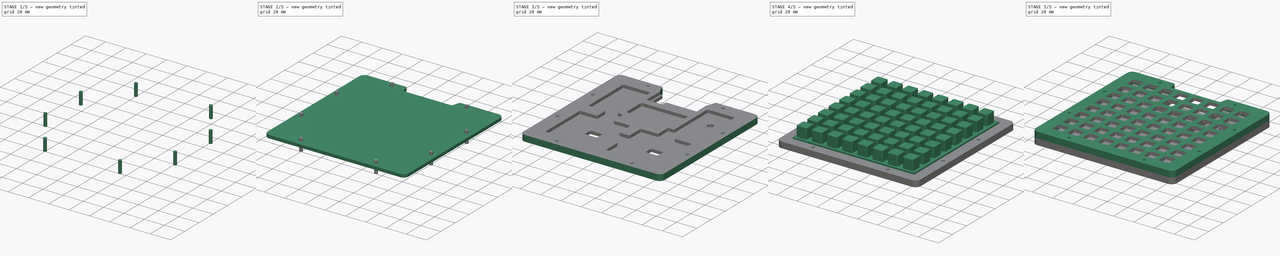
[diagram: build sequence overview — one tinted view per stage of 5, left to right]
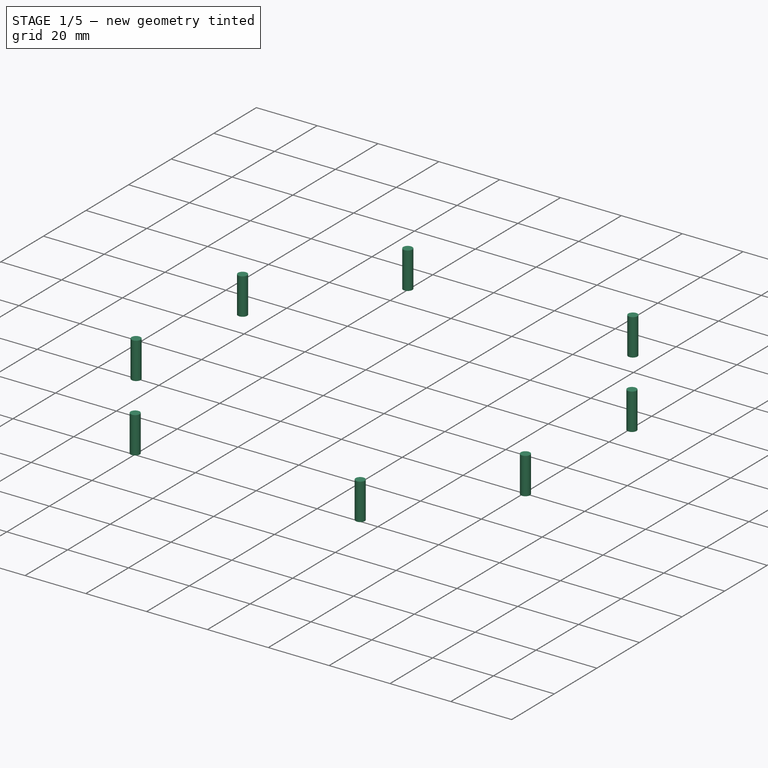
[diagram: stage 1 of 5 — iso view after this stage's code; geometry added in this stage tinted green]
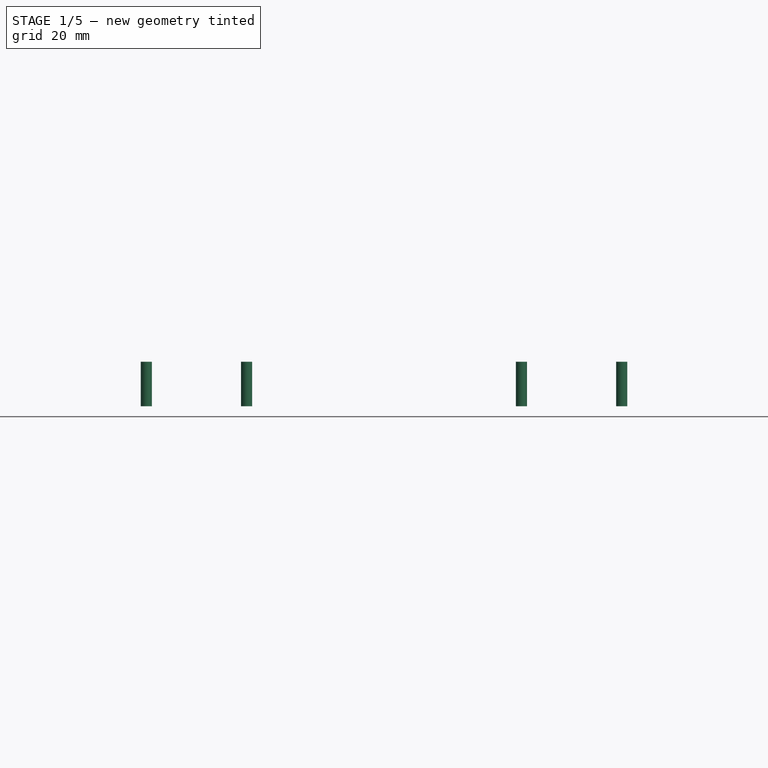
[diagram: stage 1 of 5 — front view after this stage's code; geometry added in this stage tinted green]
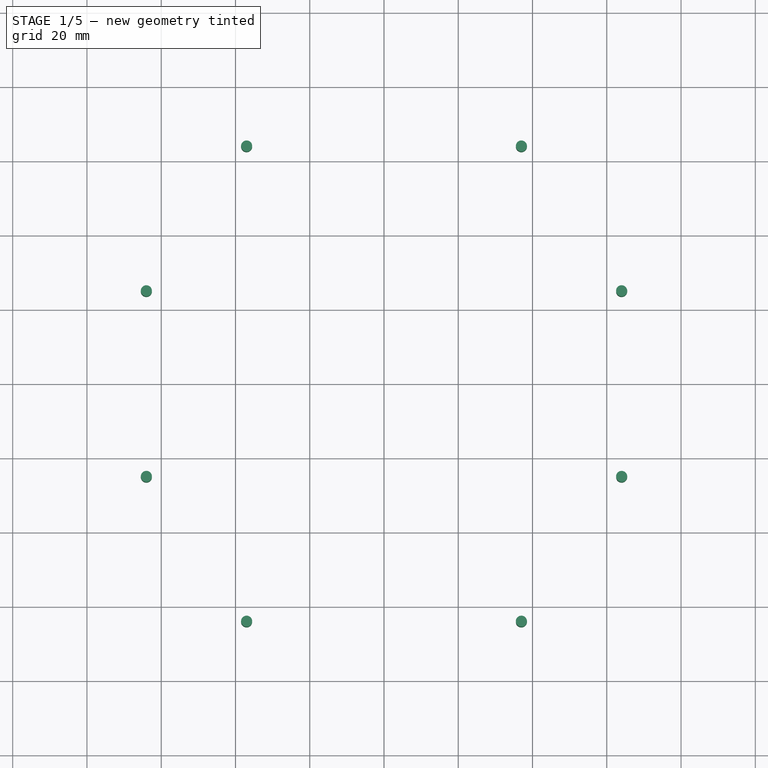
[diagram: stage 1 of 5 — top view after this stage's code; geometry added in this stage tinted green]
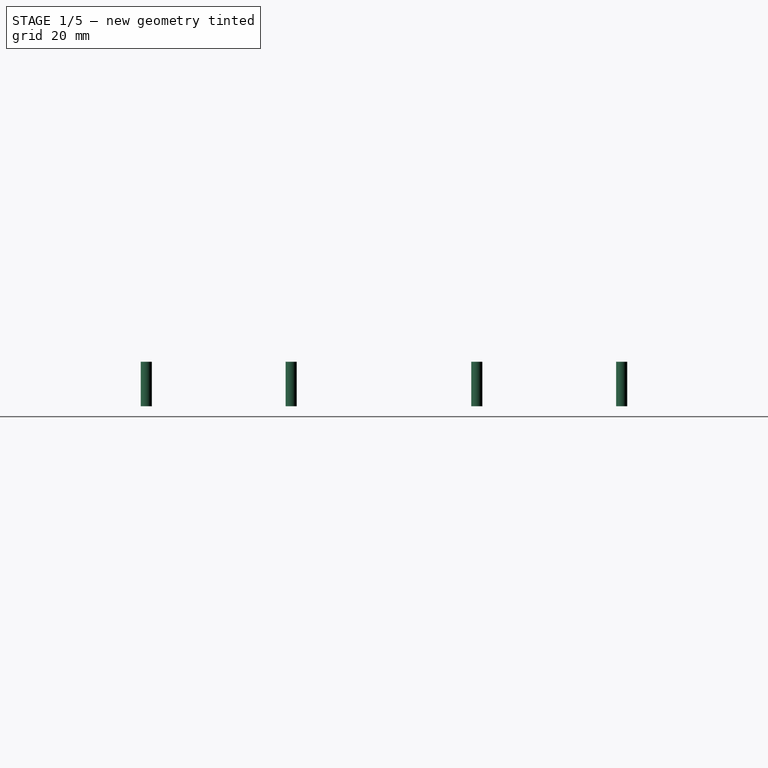
[diagram: stage 1 of 5 — right view after this stage's code; geometry added in this stage tinted green]
FCSTD DOCUMENT  (FreeCAD 0.19R)
Label: trellism4_extended
License: CreativeCommons Attribution-ShareAlike
LicenseURL: http://creativecommons.org/licenses/by-sa/4.0/
objects: PartDesign::FeatureBase×14, Sketcher::SketchObject×7, Part::MultiFuse×7, PartDesign::Pad×6, Part::Cut×5, App::Part×5, PartDesign::Body×4, Drawing::FeatureViewPart×4, Part::Box×2, Part::Mirroring×2, PartDesign::LinearPattern×1, PartDesign::Revolution×1, Drawing::FeaturePage×1
note: 56 computed .brp shape members not serialized (recipe doc carries the construction recipe); baked Part::Feature solids carry a one-line shape summary decoded from their .brp

FEATURE [Sketcher::SketchObject] Sketch004
  FullyConstrained = false
  MapMode = 5
  Placement = pos=(0,0,0) rot=(0.57735,0.57735,0.57735;2.0944rad)
  Support = -> [YZ_Plane003]
  sketch-geometry (5):
    g0: LineSegment StartX=0 StartY=-6 StartZ=0 EndX=1.5 EndY=-6 EndZ=0
    g1: LineSegment StartX=1.5 StartY=-6 StartZ=0 EndX=1.5 EndY=3 EndZ=0
    g2: LineSegment StartX=1.5 StartY=3 StartZ=0 EndX=1.5 EndY=6 EndZ=0
    g3: LineSegment StartX=1.5 StartY=6 StartZ=0 EndX=0 EndY=6 EndZ=0
    g4: LineSegment StartX=0 StartY=6 StartZ=0 EndX=0 EndY=-6 EndZ=0
  constraints (16):
    c: PointOnObject(g0,g-2)
    c: Horizontal(g0)
    c: Coincident(g0,g1)
    c: Vertical(g1)
    c: Coincident(g1,g2)
    c: Coincident(g2,g3)
    c: PointOnObject(g3,g-2)
    c: Horizontal(g3)
    c: Coincident(g4,g3)
    c: Vertical(g4)
    c: Angle(g3,g2) = 1.5708
    c: Distance(g0) = 1.5
    c: DistanceY(g1,g2) = 3
    c: DistanceY(g3) = 6
    c: Distance(g4) = 12
    c: Coincident(g0,g4)
FEATURE [PartDesign::Revolution] Revolution
  AllowMultiFace = false
  Angle = 360
  Axis = (0,0,1)
  Base = (0,0,0)
  Placement = pos=(0,0,0) rot=(0.57735,0.57735,0.57735;2.0944rad)
  Profile = -> Sketch004
  ReferenceAxis = -> Z_Axis003
  Reversed = true
FEATURE [PartDesign::Body] Body002  label="screw_M3"
  Group = -> [Sketch004,Revolution]
  Origin = -> Origin003
  Tip = -> Revolution
FEATURE [PartDesign::FeatureBase] Clone003
  BaseFeature = -> Body002
  Placement = pos=(37,64,0) rot=(0,0,1;0rad)
FEATURE [PartDesign::FeatureBase] Clone004
  BaseFeature = -> Body002
  Placement = pos=(64,25,0) rot=(0,0,1;0rad)
FEATURE [Part::MultiFuse] Fusion001
  Shapes = -> [Clone003,Clone004]
FEATURE [Part::Mirroring] Part__Mirroring  label="Fusion001 (Mirror #1)"
  Base = (0,0,0)
  Normal = (0,1,0)
  Source = -> Fusion001
FEATURE [Part::MultiFuse] Fusion002
  Shapes = -> [Part__Mirroring,Fusion001]
FEATURE [Part::Mirroring] Part__Mirroring001  label="Fusion002 (Mirror #2)"
  Base = (0,0,0)
  Normal = (1,0,0)
  Source = -> Fusion002
FEATURE [Part::MultiFuse] Fusion003
  Shapes = -> [Part__Mirroring001,Fusion002]
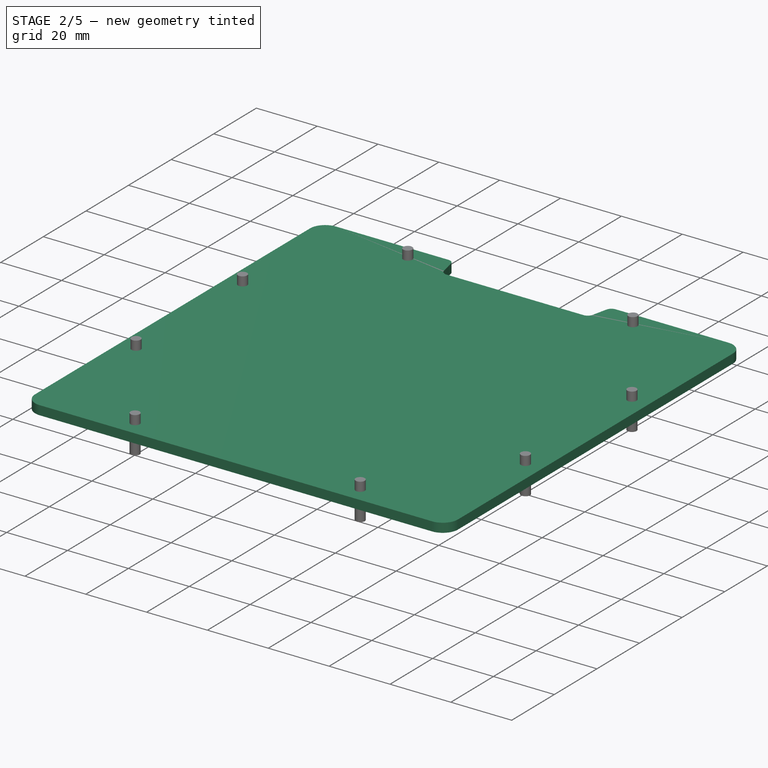
[diagram: stage 2 of 5 — iso view after this stage's code; geometry added in this stage tinted green]
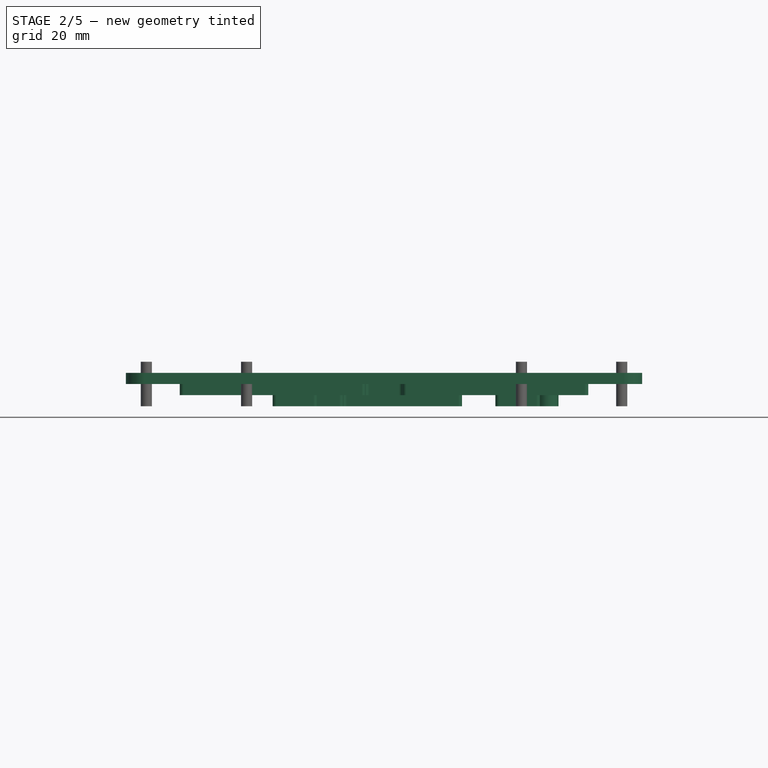
[diagram: stage 2 of 5 — front view after this stage's code; geometry added in this stage tinted green]
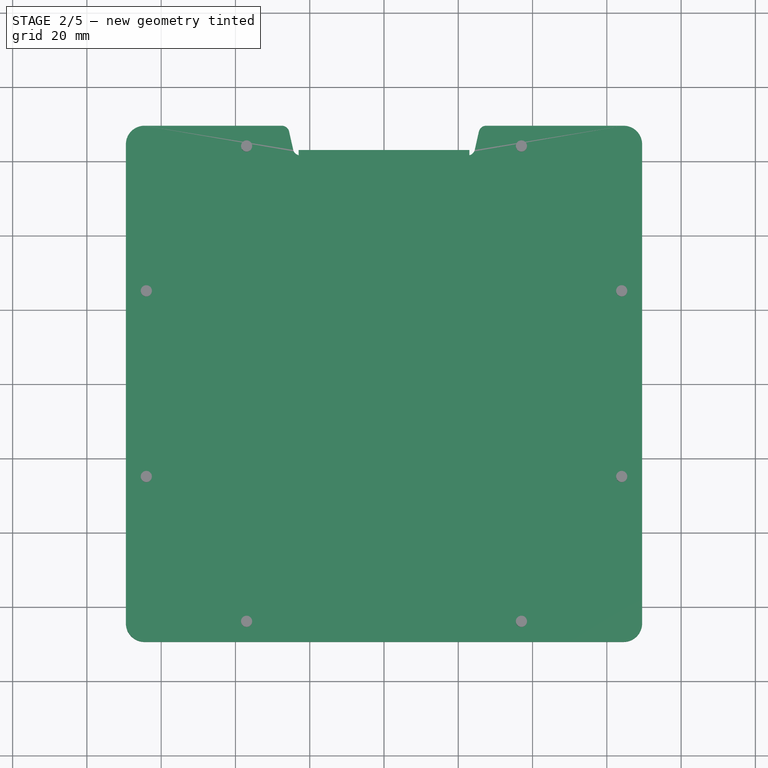
[diagram: stage 2 of 5 — top view after this stage's code; geometry added in this stage tinted green]
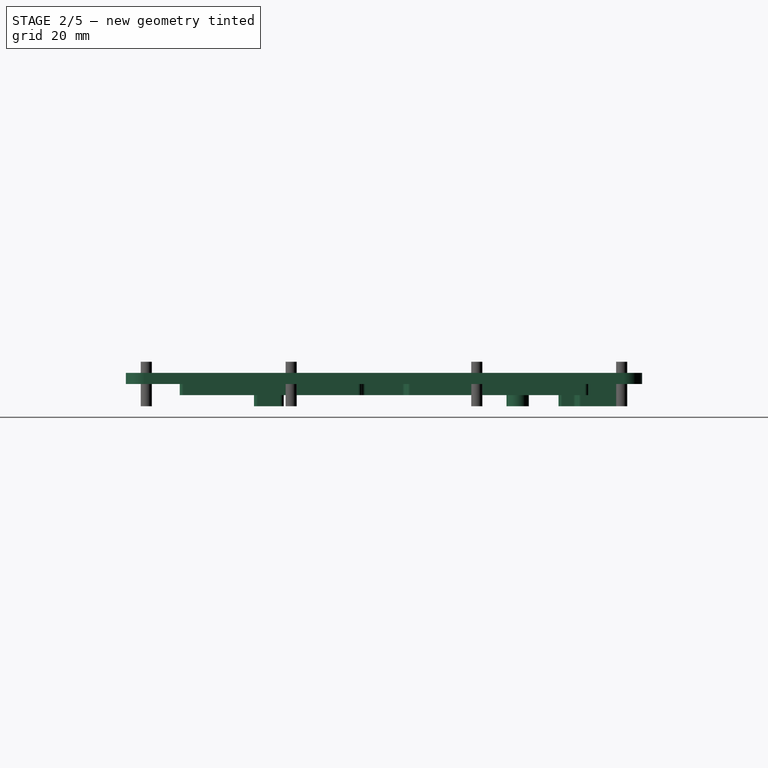
[diagram: stage 2 of 5 — right view after this stage's code; geometry added in this stage tinted green]
FEATURE [Sketcher::SketchObject] Sketch
  FullyConstrained = false
  MapMode = 5
  Support = -> [XY_Plane001]
  expr: Constraints[31] = 80 + 70 / 2
  sketch-geometry (21):
    g0: LineSegment StartX=-64.5 StartY=-69.5 StartZ=0 EndX=64.5 EndY=-69.5 EndZ=0
    g1: LineSegment StartX=69.5 StartY=-64.5 StartZ=0 EndX=69.5 EndY=64.5 EndZ=0
    g2: LineSegment StartX=64.5 StartY=69.5 StartZ=0 EndX=-64.5 EndY=69.5 EndZ=0
    g3: LineSegment StartX=-69.5 StartY=64.5 StartZ=0 EndX=-69.5 EndY=-64.5 EndZ=0
    g4: ArcOfCircle CenterX=-64.5 CenterY=-64.5 CenterZ=0 NormalX=0 NormalY=0 NormalZ=1 AngleXU=0 Radius=5 StartAngle=3.14159 EndAngle=4.71239
    g5: ArcOfCircle CenterX=64.5 CenterY=-64.5 CenterZ=0 NormalX=0 NormalY=0 NormalZ=1 AngleXU=0 Radius=5 StartAngle=4.71239 EndAngle=6.28319
    g6: ArcOfCircle CenterX=64.5 CenterY=64.5 CenterZ=0 NormalX=0 NormalY=0 NormalZ=1 AngleXU=0 Radius=5 StartAngle=0 EndAngle=1.5708
    g7: ArcOfCircle CenterX=-64.5 CenterY=64.5 CenterZ=0 NormalX=0 NormalY=0 NormalZ=1 AngleXU=0 Radius=5 StartAngle=1.5708 EndAngle=3.14159
    g8: LineSegment StartX=-64.5 StartY=69.5 StartZ=0 EndX=-27.5 EndY=69.5 EndZ=0
    g9: LineSegment StartX=-25.5488 StartY=67.939 StartZ=0 EndX=-24.4512 EndY=63.061 EndZ=0
    g10: LineSegment StartX=-22.5 StartY=61.5 StartZ=0 EndX=22.5 EndY=61.5 EndZ=0
    g11: LineSegment StartX=24.4512 StartY=63.061 StartZ=0 EndX=25.5488 EndY=67.939 EndZ=0
    g12: LineSegment StartX=27.5 StartY=69.5 StartZ=0 EndX=64.5 EndY=69.5 EndZ=0
    g13: LineSegment StartX=-57.5 StartY=57.5 StartZ=0 EndX=57.5 EndY=57.5 EndZ=0
    g14: LineSegment StartX=57.5 StartY=57.5 StartZ=0 EndX=57.5 EndY=-57.5 EndZ=0
    g15: LineSegment StartX=57.5 StartY=-57.5 StartZ=0 EndX=-57.5 EndY=-57.5 EndZ=0
    g16: LineSegment StartX=-57.5 StartY=-57.5 StartZ=0 EndX=-57.5 EndY=57.5 EndZ=0
    g17: ArcOfCircle CenterX=-27.5 CenterY=67.5 CenterZ=0 NormalX=0 NormalY=0 NormalZ=1 AngleXU=0 Radius=2 StartAngle=0.221314 EndAngle=1.5708
    g18: ArcOfCircle CenterX=-22.5 CenterY=63.5 CenterZ=0 NormalX=0 NormalY=0 NormalZ=1 AngleXU=0 Radius=2 StartAngle=3.36291 EndAngle=4.71239
    g19: ArcOfCircle CenterX=22.5 CenterY=63.5 CenterZ=0 NormalX=0 NormalY=0 NormalZ=1 AngleXU=0 Radius=2 StartAngle=4.71239 EndAngle=6.06187
    g20: ArcOfCircle CenterX=27.5 CenterY=67.5 CenterZ=0 NormalX=0 NormalY=0 NormalZ=1 AngleXU=0 Radius=2 StartAngle=1.5708 EndAngle=2.92028
  constraints (53):
    c: Vertical(g1)
    c: Vertical(g3)
    c: Tangent(g3,g4) = -1.5708
    c: Tangent(g0,g4) = -1.5708
    c: Tangent(g1,g5) = -1.5708
    c: Tangent(g0,g5) = -1.5708
    c: Tangent(g1,g6) = -1.5708
    c: Tangent(g2,g6) = -1.5708
    c: Tangent(g2,g7) = -1.5708
    c: Tangent(g3,g7) = -1.5708
    c: Horizontal(g10)
    c: Equal(g8,g12)
    c: Equal(g3,g0)
    c: Coincident(g2,g12)
    c: Horizontal(g2)
    c: Coincident(g8,g2)
    c: Equal(g11,g9)
    c: Radius(g7) = 5
    c: Equal(g7,g6)
    c: Equal(g7,g5)
    c: Equal(g7,g4)
    c: Coincident(g13,g14)
    c: Coincident(g14,g15)
    c: Coincident(g15,g16)
    c: Coincident(g16,g13)
    c: Horizontal(g13)
    c: Horizontal(g15)
    c: Vertical(g14)
    c: Vertical(g16)
    c: DistanceX(g13,g1) = 12
    c: DistanceY(g13,g2) = 12
    c: Distance(g13) = 115
    c: Tangent(g8,g17) = 1.5708
    c: Tangent(g9,g17) = 1.5708
    c: Tangent(g9,g18) = -1.5708
    c: Tangent(g10,g18) = -1.5708
    c: Tangent(g11,g19) = -1.5708
    c: Tangent(g10,g19) = -1.5708
    c: Tangent(g12,g20) = 1.5708
    c: Tangent(g11,g20) = 1.5708
    c: DistanceY(g10,g12) = 8
    c: PointOnObject(g8,g2)
    c: PointOnObject(g12,g2)
    c: Distance(g10) = 45
    c: Radius(g18) = 2
    c: Equal(g18,g17)
    c: Equal(g18,g20)
    c: Equal(g18,g19)
    c: Distance(g8) = 37
    c: Symmetric(g0,g0,g-2)
    c: Symmetric(g0,g2,g-1)
    c: Symmetric(g13,g13,g-2)
    c: Equal(g14,g15)
FEATURE [PartDesign::Pad] Pad
  AllowMultiFace = false
  Direction = (1,1,1)
  Length = 3
  Length2 = 100
  Profile = -> Sketch
  Type = 0
FEATURE [App::Part] Part  label="top"
  Group = -> [Body,Clone,Clone001,Clone002,Fusion,Cut,Clone003,Clone004,Fusion001,Part__Mirroring,Fusion002,Part__Mirroring001,Fusion003,Clone008,Cut004]
  License = CC BY 3.0
  LicenseURL = http://creativecommons.org/licenses/by/3.0/
  Origin = -> Origin
FEATURE [Sketcher::SketchObject] Sketch005
  FullyConstrained = false
  MapMode = 5
  Support = -> [XY_Plane007]
  sketch-geometry (4):
    g0: LineSegment StartX=60.5 StartY=60.5 StartZ=0 EndX=-60.5 EndY=60.5 EndZ=0
    g1: LineSegment StartX=-60.5 StartY=60.5 StartZ=0 EndX=-60.5 EndY=-60.5 EndZ=0
    g2: LineSegment StartX=-60.5 StartY=-60.5 StartZ=0 EndX=60.5 EndY=-60.5 EndZ=0
    g3: LineSegment StartX=60.5 StartY=-60.5 StartZ=0 EndX=60.5 EndY=60.5 EndZ=0
  constraints (12):
    c: Coincident(g0,g1)
    c: Coincident(g1,g2)
    c: Coincident(g2,g3)
    c: Coincident(g3,g0)
    c: Horizontal(g0)
    c: Horizontal(g2)
    c: Vertical(g1)
    c: Vertical(g3)
    c: Equal(g3,g2)
    c: Distance(g3) = 121
    c: Symmetric(g0,g0,g-2)
    c: Symmetric(g0,g2,g-1)
FEATURE [PartDesign::Pad] Pad003
  AllowMultiFace = false
  Direction = (1,1,1)
  Length = 1.5
  Length2 = 100
  Profile = -> Sketch005
  Type = 0
FEATURE [Sketcher::SketchObject] Sketch006
  FullyConstrained = true
  MapMode = 5
  Placement = pos=(0,0,0) rot=(1,0,0;3.14159rad)
  Support = -> [Pad003]
  sketch-geometry (75):
    g0: LineSegment StartX=-60 StartY=60 StartZ=0 EndX=60 EndY=60 EndZ=0
    g1: LineSegment StartX=60 StartY=60 StartZ=0 EndX=60 EndY=-60 EndZ=0
    g2: LineSegment StartX=60 StartY=-60 StartZ=0 EndX=-60 EndY=-60 EndZ=0
    g3: LineSegment StartX=-60 StartY=-60 StartZ=0 EndX=-60 EndY=60 EndZ=0
    g4: LineSegment StartX=-55 StartY=54 StartZ=0 EndX=-55 EndY=7 EndZ=0
    g5: LineSegment StartX=-54 StartY=6 StartZ=0 EndX=-39 EndY=6 EndZ=0
    g6: LineSegment StartX=-38 StartY=5 StartZ=0 EndX=-38 EndY=-5 EndZ=0
    g7: LineSegment StartX=-39 StartY=-6 StartZ=0 EndX=-54 EndY=-6 EndZ=0
    g8: LineSegment StartX=-55 StartY=-7 StartZ=0 EndX=-55 EndY=-54 EndZ=0
    g9: LineSegment StartX=-54 StartY=-55 StartZ=0 EndX=-29 EndY=-55 EndZ=0
    g10: LineSegment StartX=-28 StartY=-54 StartZ=0 EndX=-28 EndY=-9 EndZ=0
    g11: LineSegment StartX=-27 StartY=-8 StartZ=0 EndX=27 EndY=-8 EndZ=0
    g12: LineSegment StartX=28 StartY=-9 StartZ=0 EndX=28 EndY=-54 EndZ=0
    g13: LineSegment StartX=29 StartY=-55 StartZ=0 EndX=54 EndY=-55 EndZ=0
    g14: LineSegment StartX=55 StartY=-54 StartZ=0 EndX=55 EndY=-7 EndZ=0
    g15: LineSegment StartX=54 StartY=-6 StartZ=0 EndX=39 EndY=-6 EndZ=0
    g16: LineSegment StartX=38 StartY=-5 StartZ=0 EndX=38 EndY=5 EndZ=0
    g17: LineSegment StartX=39 StartY=6 StartZ=0 EndX=54 EndY=6 EndZ=0
    g18: LineSegment StartX=55 StartY=7 StartZ=0 EndX=55 EndY=54 EndZ=0
    g19: LineSegment StartX=54 StartY=55 StartZ=0 EndX=6 EndY=55 EndZ=0
    g20: LineSegment StartX=5 StartY=54 StartZ=0 EndX=5 EndY=39 EndZ=0
    g21: LineSegment StartX=4 StartY=38 StartZ=0 EndX=-4 EndY=38 EndZ=0
    g22: LineSegment StartX=-5 StartY=39 StartZ=0 EndX=-5 EndY=54 EndZ=0
    g23: LineSegment StartX=-6 StartY=55 StartZ=0 EndX=-54 EndY=55 EndZ=0
    g24: ArcOfCircle CenterX=-4 CenterY=39 CenterZ=0 NormalX=0 NormalY=0 NormalZ=1 AngleXU=0 Radius=1 StartAngle=3.14159 EndAngle=4.71239
    g25: ArcOfCircle CenterX=4 CenterY=39 CenterZ=0 NormalX=0 NormalY=0 NormalZ=1 AngleXU=0 Radius=1 StartAngle=4.71239 EndAngle=6.28319
    g26: ArcOfCircle CenterX=6 CenterY=54 CenterZ=0 NormalX=0 NormalY=0 NormalZ=1 AngleXU=0 Radius=1 StartAngle=1.5708 EndAngle=3.14159
    g27: ArcOfCircle CenterX=-6 CenterY=54 CenterZ=0 NormalX=0 NormalY=0 NormalZ=1 AngleXU=0 Radius=1 StartAngle=-1.03e-13 EndAngle=1.5708
    g28: ArcOfCircle CenterX=-54 CenterY=54 CenterZ=0 NormalX=0 NormalY=0 NormalZ=1 AngleXU=0 Radius=1 StartAngle=1.5708 EndAngle=3.14159
    g29: ArcOfCircle CenterX=-54 CenterY=7 CenterZ=0 NormalX=0 NormalY=0 NormalZ=1 AngleXU=0 Radius=1 StartAngle=3.14159 EndAngle=4.71239
    g30: ArcOfCircle CenterX=-39 CenterY=5 CenterZ=0 NormalX=0 NormalY=0 NormalZ=1 AngleXU=0 Radius=1 StartAngle=1.034e-13 EndAngle=1.5708
    g31: ArcOfCircle CenterX=-39 CenterY=-5 CenterZ=0 NormalX=0 NormalY=0 NormalZ=1 AngleXU=0 Radius=1 StartAngle=4.71239 EndAngle=6.28319
    g32: ArcOfCircle CenterX=-54 CenterY=-7 CenterZ=0 NormalX=0 NormalY=0 NormalZ=1 AngleXU=0 Radius=1 StartAngle=1.5708 EndAngle=3.14159
    g33: ArcOfCircle CenterX=54 CenterY=54 CenterZ=0 NormalX=0 NormalY=0 NormalZ=1 AngleXU=0 Radius=1 StartAngle=-1.03e-13 EndAngle=1.5708
    g34: ArcOfCircle CenterX=54 CenterY=7 CenterZ=0 NormalX=0 NormalY=0 NormalZ=1 AngleXU=0 Radius=1 StartAngle=4.71239 EndAngle=6.28319
    g35: ArcOfCircle CenterX=39 CenterY=5 CenterZ=0 NormalX=0 NormalY=0 NormalZ=1 AngleXU=0 Radius=1 StartAngle=1.5708 EndAngle=3.14159
    g36: ArcOfCircle CenterX=39 CenterY=-5 CenterZ=0 NormalX=0 NormalY=0 NormalZ=1 AngleXU=0 Radius=1 StartAngle=3.14159 EndAngle=4.71239
    g37: ArcOfCircle CenterX=54 CenterY=-7 CenterZ=0 NormalX=0 NormalY=0 NormalZ=1 AngleXU=0 Radius=1 StartAngle=-1.03e-13 EndAngle=1.5708
    g38: ArcOfCircle CenterX=54 CenterY=-54 CenterZ=0 NormalX=0 NormalY=0 NormalZ=1 AngleXU=0 Radius=1 StartAngle=4.71239 EndAngle=6.28319
    g39: ArcOfCircle CenterX=29 CenterY=-54 CenterZ=0 NormalX=0 NormalY=0 NormalZ=1 AngleXU=0 Radius=1 StartAngle=3.14159 EndAngle=4.71239
    g40: ArcOfCircle CenterX=27 CenterY=-9 CenterZ=0 NormalX=0 NormalY=0 NormalZ=1 AngleXU=0 Radius=1 StartAngle=1.034e-13 EndAngle=1.5708
    g41: ArcOfCircle CenterX=-27 CenterY=-9 CenterZ=0 NormalX=0 NormalY=0 NormalZ=1 AngleXU=0 Radius=1 StartAngle=1.5708 EndAngle=3.14159
    g42: ArcOfCircle CenterX=-29 CenterY=-54 CenterZ=0 NormalX=0 NormalY=0 NormalZ=1 AngleXU=0 Radius=1 StartAngle=4.71239 EndAngle=6.28319
    g43: ArcOfCircle CenterX=-54 CenterY=-54 CenterZ=0 NormalX=0 NormalY=0 NormalZ=1 AngleXU=0 Radius=1 StartAngle=3.14159 EndAngle=4.71239
    g44: LineSegment StartX=-21 StartY=-13 StartZ=0 EndX=21 EndY=-13 EndZ=0
    g45: LineSegment StartX=23 StartY=-15 StartZ=0 EndX=23 EndY=-33 EndZ=0
    g46: LineSegment StartX=21 StartY=-35 StartZ=0 EndX=-21 EndY=-35 EndZ=0
    g47: LineSegment StartX=-23 StartY=-33 StartZ=0 EndX=-23 EndY=-15 EndZ=0
    g48: ArcOfCircle CenterX=-21 CenterY=-15 CenterZ=0 NormalX=0 NormalY=0 NormalZ=1 AngleXU=0 Radius=2 StartAngle=1.5708 EndAngle=3.14159
    g49: ArcOfCircle CenterX=-21 CenterY=-33 CenterZ=0 NormalX=0 NormalY=0 NormalZ=1 AngleXU=0 Radius=2 StartAngle=3.14159 EndAngle=4.71239
    g50: ArcOfCircle CenterX=21 CenterY=-33 CenterZ=0 NormalX=0 NormalY=0 NormalZ=1 AngleXU=0 Radius=2 StartAngle=4.71239 EndAngle=6.28319
    g51: ArcOfCircle CenterX=21 CenterY=-15 CenterZ=0 NormalX=0 NormalY=0 NormalZ=1 AngleXU=0 Radius=2 StartAngle=1.034e-13 EndAngle=1.5708
    g52: LineSegment StartX=-23 StartY=-63 StartZ=0 EndX=23 EndY=-63 EndZ=0
    g53: LineSegment StartX=23 StartY=-63 StartZ=0 EndX=23 EndY=-43 EndZ=0
    g54: LineSegment StartX=22 StartY=-42 StartZ=0 EndX=-22 EndY=-42 EndZ=0
    g55: LineSegment StartX=-23 StartY=-43 StartZ=0 EndX=-23 EndY=-63 EndZ=0
    g56: ArcOfCircle CenterX=-22 CenterY=-43 CenterZ=0 NormalX=0 NormalY=0 NormalZ=1 AngleXU=0 Radius=1 StartAngle=1.5708 EndAngle=3.14159
    g57: ArcOfCircle CenterX=22 CenterY=-43 CenterZ=0 NormalX=0 NormalY=0 NormalZ=1 AngleXU=0 Radius=1 StartAngle=-1.03e-13 EndAngle=1.5708
    g58: LineSegment StartX=-27 StartY=-8 StartZ=0 EndX=-23 EndY=-8 EndZ=0
    g59: LineSegment StartX=-22 StartY=-7 StartZ=0 EndX=-22 EndY=5 EndZ=0
    g60: LineSegment StartX=-21 StartY=6 StartZ=0 EndX=-6 EndY=6 EndZ=0
    g61: LineSegment StartX=-5 StartY=7 StartZ=0 EndX=-5 EndY=21 EndZ=0
    g62: LineSegment StartX=-4 StartY=22 StartZ=0 EndX=4 EndY=22 EndZ=0
    g63: LineSegment StartX=5 StartY=21 StartZ=0 EndX=5 EndY=7 EndZ=0
    g64: LineSegment StartX=6 StartY=6 StartZ=0 EndX=21 EndY=6 EndZ=0
    g65: LineSegment StartX=22 StartY=5 StartZ=0 EndX=22 EndY=-7 EndZ=0
    g66: LineSegment StartX=23 StartY=-8 StartZ=0 EndX=27 EndY=-8 EndZ=0
    g67: ArcOfCircle CenterX=-23 CenterY=-7 CenterZ=0 NormalX=0 NormalY=0 NormalZ=1 AngleXU=0 Radius=1 StartAngle=4.71239 EndAngle=6.28319
    g68: ArcOfCircle CenterX=-21 CenterY=5 CenterZ=0 NormalX=0 NormalY=0 NormalZ=1 AngleXU=0 Radius=1 StartAngle=1.5708 EndAngle=3.14159
    g69: ArcOfCircle CenterX=-6 CenterY=7 CenterZ=0 NormalX=0 NormalY=0 NormalZ=1 AngleXU=0 Radius=1 StartAngle=4.71239 EndAngle=6.28319
    g70: ArcOfCircle CenterX=-4 CenterY=21 CenterZ=0 NormalX=0 NormalY=0 NormalZ=1 AngleXU=0 Radius=1 StartAngle=1.5708 EndAngle=3.14159
    g71: ArcOfCircle CenterX=4 CenterY=21 CenterZ=0 NormalX=0 NormalY=0 NormalZ=1 AngleXU=0 Radius=1 StartAngle=1.034e-13 EndAngle=1.5708
    g72: ArcOfCircle CenterX=6 CenterY=7 CenterZ=0 NormalX=0 NormalY=0 NormalZ=1 AngleXU=0 Radius=1 StartAngle=3.14159 EndAngle=4.71239
    g73: ArcOfCircle CenterX=21 CenterY=5 CenterZ=0 NormalX=0 NormalY=0 NormalZ=1 AngleXU=0 Radius=1 StartAngle=1.034e-13 EndAngle=1.5708
    g74: ArcOfCircle CenterX=23 CenterY=-7 CenterZ=0 NormalX=0 NormalY=0 NormalZ=1 AngleXU=0 Radius=1 StartAngle=3.14159 EndAngle=4.71239
  constraints (183):
    c: Coincident(g0,g1)
    c: Coincident(g1,g2)
    c: Coincident(g2,g3)
    c: Coincident(g3,g0)
    c: Horizontal(g0)
    c: Vertical(g3)
    c: Equal(g2,g1)
    c: Distance(g2) = 120
    c: Symmetric(g2,g1,g-2)
    c: Symmetric(g1,g0,g-1)
    c: Vertical(g4)
    c: Horizontal(g5)
    c: Vertical(g6)
    c: Horizontal(g7)
    c: Vertical(g8)
    c: Horizontal(g9)
    c: Vertical(g10)
    c: Vertical(g12)
    c: Horizontal(g13)
    c: Vertical(g14)
    c: Horizontal(g15)
    c: Vertical(g16)
    c: Horizontal(g17)
    c: Vertical(g18)
    c: Horizontal(g19)
    c: Vertical(g20)
    c: Horizontal(g21)
    c: Vertical(g22)
    c: Horizontal(g23)
    c: Tangent(g22,g24) = 1.5708
    c: Tangent(g21,g24) = 1.5708
    c: Tangent(g21,g25) = 1.5708
    c: Tangent(g20,g25) = 1.5708
    c: Tangent(g20,g26) = -1.5708
    c: Tangent(g19,g26) = -1.5708
    c: Tangent(g23,g27) = -1.5708
    c: Tangent(g22,g27) = -1.5708
    c: Tangent(g23,g28) = -1.5708
    c: Tangent(g4,g28) = -1.5708
    c: Tangent(g4,g29) = -1.5708
    c: Tangent(g5,g29) = -1.5708
    c: Tangent(g5,g30) = 1.5708
    c: Tangent(g6,g30) = 1.5708
    c: Tangent(g6,g31) = 1.5708
    c: Tangent(g7,g31) = 1.5708
    c: Tangent(g7,g32) = -1.5708
    c: Tangent(g8,g32) = -1.5708
    c: Tangent(g19,g33) = -1.5708
    c: Tangent(g18,g33) = -1.5708
    c: Tangent(g18,g34) = -1.5708
    c: Tangent(g17,g34) = -1.5708
    c: Tangent(g17,g35) = 1.5708
    c: Tangent(g16,g35) = 1.5708
    c: Tangent(g16,g36) = 1.5708
    c: Tangent(g15,g36) = 1.5708
    c: Tangent(g15,g37) = -1.5708
    c: Tangent(g14,g37) = -1.5708
    c: Tangent(g14,g38) = -1.5708
    c: Tangent(g13,g38) = -1.5708
    c: Tangent(g13,g39) = -1.5708
    c: Tangent(g12,g39) = -1.5708
    c: Tangent(g12,g40) = 1.5708
    c: Tangent(g11,g40) = 1.5708
    c: Tangent(g11,g41) = 1.5708
    c: Tangent(g10,g41) = 1.5708
    c: Tangent(g10,g42) = -1.5708
    c: Tangent(g9,g42) = -1.5708
    c: Tangent(g9,g43) = -1.5708
    c: Tangent(g8,g43) = -1.5708
    c: Horizontal(g44)
    c: Horizontal(g46)
    c: Vertical(g45)
    c: Vertical(g47)
    c: Tangent(g44,g48) = 1.5708
    c: Tangent(g47,g48) = 1.5708
    c: Tangent(g47,g49) = 1.5708
    c: Tangent(g46,g49) = 1.5708
    c: Tangent(g46,g50) = 1.5708
    c: Tangent(g45,g50) = 1.5708
    c: Tangent(g44,g51) = 1.5708
    c: Tangent(g45,g51) = 1.5708
    c: Symmetric(g48,g51,g-2)
    c: Symmetric(g8,g14,g-2)
    c: Equal(g9,g13)
    c: Radius(g43) = 1
    c: Equal(g43,g42)
    c: Equal(g43,g41)
    c: Equal(g43,g40)
    c: Equal(g43,g39)
    c: Equal(g43,g38)
    c: Equal(g43,g37)
    c: Equal(g43,g36)
    c: Equal(g43,g35)
    c: Equal(g43,g30)
    c: Equal(g43,g31)
    c: Equal(g43,g32)
    c: Equal(g43,g29)
    c: Equal(g43,g28)
    c: Equal(g43,g27)
    c: Equal(g43,g24)
    c: Equal(g43,g25)
    c: Equal(g43,g26)
    c: Equal(g43,g33)
    c: Equal(g14,g8)
    c: Equal(g6,g16)
    c: Equal(g18,g4)
    c: Equal(g7,g17)
    c: Equal(g23,g19)
    c: DistanceY(g7,g5) = 12
    c: DistanceX(g0,g4) = 5
    c: DistanceY(g23,g0) = 5
    c: Equal(g5,g22)
    c: DistanceY(g21,g23) = 17
    c: Symmetric(g9,g23,g-1)
    c: Symmetric(g4,g18,g-2)
    c: Coincident(g52,g53)
    c: Coincident(g55,g52)
    c: Horizontal(g54)
    c: Vertical(g53)
    c: Vertical(g55)
    c: DistanceY(g52,g2) = 3
    c: Distance(g52) = 46
    c: Symmetric(g52,g52,g-2)
    c: Tangent(g54,g56) = -1.5708
    c: Tangent(g55,g56) = -1.5708
    c: Tangent(g54,g57) = -1.5708
    c: Tangent(g53,g57) = -1.5708
    c: Equal(g57,g56)
    c: Equal(g56,g42)
    c: DistanceY(g1,g54) = 18
    c: PointOnObject(g55,g47)
    c: Equal(g14,g18)
    c: Radius(g49) = 2
    c: Equal(g49,g48)
    c: Equal(g51,g50)
    c: DistanceY(g54,g46) = 7
    c: DistanceY(g44,g11) = 5
    c: DistanceX(g10,g47) = 5
    c: DistanceY(g46,g44) = 22
    c: Coincident(g11,g58)
    c: Horizontal(g58)
    c: Vertical(g59)
    c: Horizontal(g60)
    c: Vertical(g61)
    c: Horizontal(g62)
    c: Vertical(g63)
    c: Horizontal(g64)
    c: Vertical(g65)
    c: Coincident(g66,g11)
    c: Tangent(g59,g67) = -1.5708
    c: Tangent(g58,g67) = -1.5708
    c: Tangent(g59,g68) = 1.5708
    c: Tangent(g60,g68) = 1.5708
    c: Tangent(g60,g69) = -1.5708
    c: Tangent(g61,g69) = -1.5708
    c: Tangent(g62,g70) = 1.5708
    c: Tangent(g61,g70) = 1.5708
    c: Tangent(g62,g71) = 1.5708
    c: Tangent(g63,g71) = 1.5708
    c: Tangent(g63,g72) = -1.5708
    c: Tangent(g64,g72) = -1.5708
    c: Tangent(g64,g73) = 1.5708
    c: Tangent(g65,g73) = 1.5708
    c: Tangent(g65,g74) = -1.5708
    c: Tangent(g66,g74) = -1.5708
    c: Equal(g74,g73)
    c: Equal(g73,g72)
    c: Equal(g72,g71)
    c: Equal(g71,g70)
    c: Equal(g70,g69)
    c: Equal(g69,g68)
    c: Equal(g68,g67)
    c: Equal(g67,g30)
    c: Horizontal(g66)
    c: Horizontal(g11)
    c: PointOnObject(g60,g5)
    c: PointOnObject(g64,g5)
    c: Equal(g60,g64)
    c: Equal(g66,g58)
    c: DistanceX(g59,g-1) = 22
    c: DistanceY(g-1,g62) = 22
    c: Equal(g62,g21)
    c: Distance(g21) = 8
FEATURE [PartDesign::Pad] Pad004
  AllowMultiFace = false
  BaseFeature = -> Pad003
  Direction = (1,1,1)
  Length = 3
  Length2 = 100
  Profile = -> Sketch006
  Type = 0
FEATURE [Sketcher::SketchObject] Sketch007
  FullyConstrained = true
  MapMode = 5
  Placement = pos=(0,0,-3) rot=(1,0,0;3.14159rad)
  Support = -> [Pad004]
  sketch-geometry (27):
    g0: Circle CenterX=44 CenterY=-36 CenterZ=0 NormalX=0 NormalY=0 NormalZ=1 AngleXU=0 Radius=3
    g1: LineSegment StartX=31 StartY=35 StartZ=0 EndX=41 EndY=35 EndZ=0
    g2: LineSegment StartX=42 StartY=34 StartZ=0 EndX=42 EndY=28 EndZ=0
    g3: LineSegment StartX=41 StartY=27 StartZ=0 EndX=31 EndY=27 EndZ=0
    g4: LineSegment StartX=30 StartY=28 StartZ=0 EndX=30 EndY=34 EndZ=0
    g5: LineSegment StartX=-29 StartY=35 StartZ=0 EndX=-19 EndY=35 EndZ=0
    g6: LineSegment StartX=-18 StartY=34 StartZ=0 EndX=-18 EndY=28 EndZ=0
    g7: LineSegment StartX=-19 StartY=27 StartZ=0 EndX=-29 EndY=27 EndZ=0
    g8: LineSegment StartX=-30 StartY=28 StartZ=0 EndX=-30 EndY=34 EndZ=0
    g9: ArcOfCircle CenterX=-29 CenterY=34 CenterZ=0 NormalX=0 NormalY=0 NormalZ=1 AngleXU=0 Radius=1 StartAngle=1.5708 EndAngle=3.14159
    g10: ArcOfCircle CenterX=-19 CenterY=34 CenterZ=0 NormalX=0 NormalY=0 NormalZ=1 AngleXU=0 Radius=1 StartAngle=0 EndAngle=1.5708
    g11: ArcOfCircle CenterX=-19 CenterY=28 CenterZ=0 NormalX=0 NormalY=0 NormalZ=1 AngleXU=0 Radius=1 StartAngle=4.71239 EndAngle=6.28319
    g12: ArcOfCircle CenterX=-29 CenterY=28 CenterZ=0 NormalX=0 NormalY=0 NormalZ=1 AngleXU=0 Radius=1 StartAngle=3.14159 EndAngle=4.71239
    g13: ArcOfCircle CenterX=31 CenterY=34 CenterZ=0 NormalX=0 NormalY=0 NormalZ=1 AngleXU=0 Radius=1 StartAngle=1.5708 EndAngle=3.14159
    g14: ArcOfCircle CenterX=41 CenterY=34 CenterZ=0 NormalX=0 NormalY=0 NormalZ=1 AngleXU=0 Radius=1 StartAngle=0 EndAngle=1.5708
    g15: ArcOfCircle CenterX=41 CenterY=28 CenterZ=0 NormalX=0 NormalY=0 NormalZ=1 AngleXU=0 Radius=1 StartAngle=4.71239 EndAngle=6.28319
    g16: ArcOfCircle CenterX=31 CenterY=28 CenterZ=0 NormalX=0 NormalY=0 NormalZ=1 AngleXU=0 Radius=1 StartAngle=3.14159 EndAngle=4.71239
    g17: LineSegment StartX=-21 StartY=-63 StartZ=0 EndX=-21 EndY=-48 EndZ=0
    g18: LineSegment StartX=-20 StartY=-47 StartZ=0 EndX=-12 EndY=-47 EndZ=0
    g19: LineSegment StartX=-11 StartY=-48 StartZ=0 EndX=-11 EndY=-51 EndZ=0
    g20: LineSegment StartX=-10 StartY=-52 StartZ=0 EndX=20 EndY=-52 EndZ=0
    g21: LineSegment StartX=21 StartY=-53 StartZ=0 EndX=21 EndY=-63 EndZ=0
    g22: LineSegment StartX=21 StartY=-63 StartZ=0 EndX=-21 EndY=-63 EndZ=0
    g23: ArcOfCircle CenterX=-20 CenterY=-48 CenterZ=0 NormalX=0 NormalY=0 NormalZ=1 AngleXU=0 Radius=1 StartAngle=1.5708 EndAngle=3.14159
    g24: ArcOfCircle CenterX=-12 CenterY=-48 CenterZ=0 NormalX=0 NormalY=0 NormalZ=1 AngleXU=0 Radius=1 StartAngle=0 EndAngle=1.5708
    g25: ArcOfCircle CenterX=20 CenterY=-53 CenterZ=0 NormalX=0 NormalY=0 NormalZ=1 AngleXU=0 Radius=1 StartAngle=0 EndAngle=1.5708
    g26: ArcOfCircle CenterX=-10 CenterY=-51 CenterZ=0 NormalX=0 NormalY=0 NormalZ=1 AngleXU=0 Radius=1 StartAngle=3.14159 EndAngle=4.71239
  constraints (67):
    c: DistanceX(g0) = 44
    c: DistanceY(g0) = -36
    c: Horizontal(g1)
    c: Horizontal(g3)
    c: Vertical(g2)
    c: Vertical(g4)
    c: Horizontal(g5)
    c: Horizontal(g7)
    c: Vertical(g6)
    c: Vertical(g8)
    c: Equal(g5,g1)
    c: Equal(g6,g4)
    c: Tangent(g5,g9) = 1.5708
    c: Tangent(g8,g9) = 1.5708
    c: Tangent(g5,g10) = 1.5708
    c: Tangent(g6,g10) = 1.5708
    c: Tangent(g6,g11) = 1.5708
    c: Tangent(g7,g11) = 1.5708
    c: Tangent(g7,g12) = 1.5708
    c: Tangent(g8,g12) = 1.5708
    c: DistanceX(g8,g6) = 12
    c: DistanceY(g7,g5) = 8
    c: DistanceY(g7) = 27
    c: Tangent(g1,g13) = 1.5708
    c: Tangent(g4,g13) = 1.5708
    c: Tangent(g1,g14) = 1.5708
    c: Tangent(g2,g14) = 1.5708
    c: Tangent(g2,g15) = 1.5708
    c: Tangent(g3,g15) = 1.5708
    c: Tangent(g3,g16) = 1.5708
    c: Tangent(g4,g16) = 1.5708
    c: Equal(g3,g7)
    c: Radius(g11) = 1
    c: Equal(g11,g12)
    c: Equal(g12,g9)
    c: Equal(g9,g10)
    c: Equal(g11,g16)
    c: Equal(g16,g13)
    c: Equal(g13,g14)
    c: Horizontal(g20)
    c: Vertical(g21)
    c: Coincident(g21,g22)
    c: Coincident(g22,g17)
    c: Vertical(g17)
    c: Vertical(g19)
    c: Tangent(g18,g23) = 1.5708
    c: Tangent(g17,g23) = 1.5708
    c: Tangent(g18,g24) = 1.5708
    c: Tangent(g19,g24) = 1.5708
    c: Tangent(g21,g25) = 1.5708
    c: Tangent(g20,g26) = -1.5708
    c: Tangent(g19,g26) = -1.5708
    c: Horizontal(g18)
    c: Radius(g23) = 1
    c: Equal(g23,g24)
    c: Equal(g23,g26)
    c: Equal(g23,g25)
    c: Symmetric(g17,g21,g-2)
    c: DistanceY(g17) = -63
    c: Distance(g22) = 42
    c: DistanceY(g20,g18) = 5
    c: Radius(g0) = 3
    c: DistanceX(g17,g19) = 10
    c: DistanceY(g17,g18) = 16
    c: Tangent(g25,g20) = 1.5708
    c: DistanceX(g8) = -30
    c: Symmetric(g4,g8,g-2)
FEATURE [PartDesign::Pad] Pad005
  AllowMultiFace = false
  BaseFeature = -> Pad004
  Direction = (1,1,1)
  Length = 3
  Length2 = 100
  Profile = -> Sketch007
  Type = 0
FEATURE [PartDesign::FeatureBase] Clone013
  BaseFeature = -> Body003
FEATURE [PartDesign::FeatureBase] Clone014
  BaseFeature = -> Fusion003
FEATURE [Part::MultiFuse] Fusion006
  Shapes = -> [Clone013,Clone014]
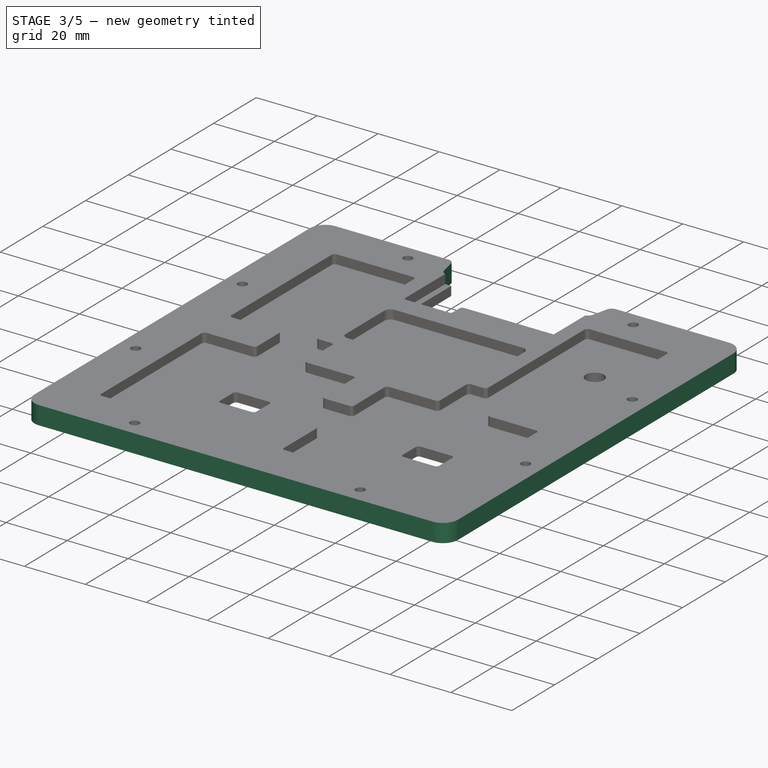
[diagram: stage 3 of 5 — iso view after this stage's code; geometry added in this stage tinted green]
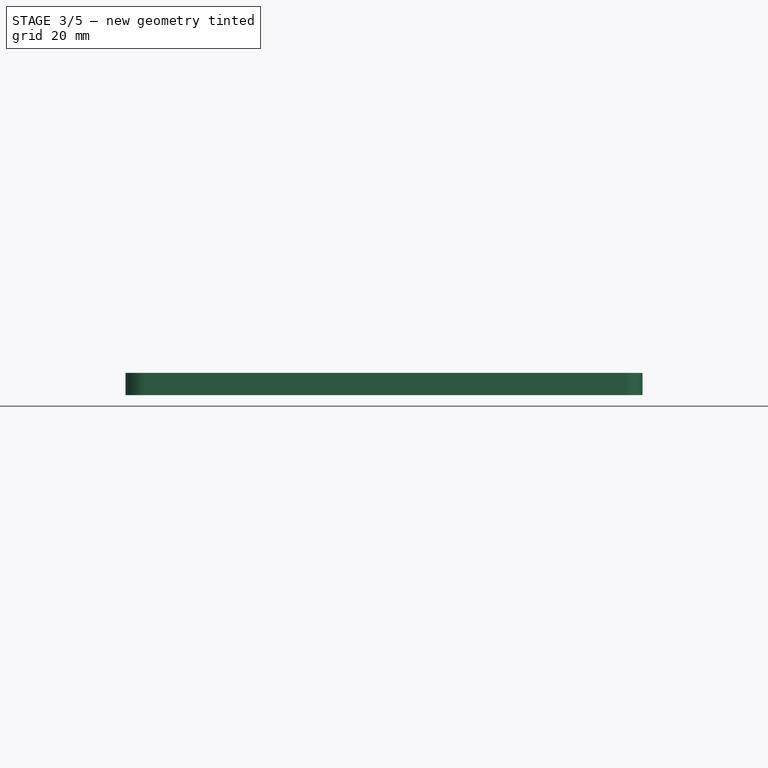
[diagram: stage 3 of 5 — front view after this stage's code; geometry added in this stage tinted green]
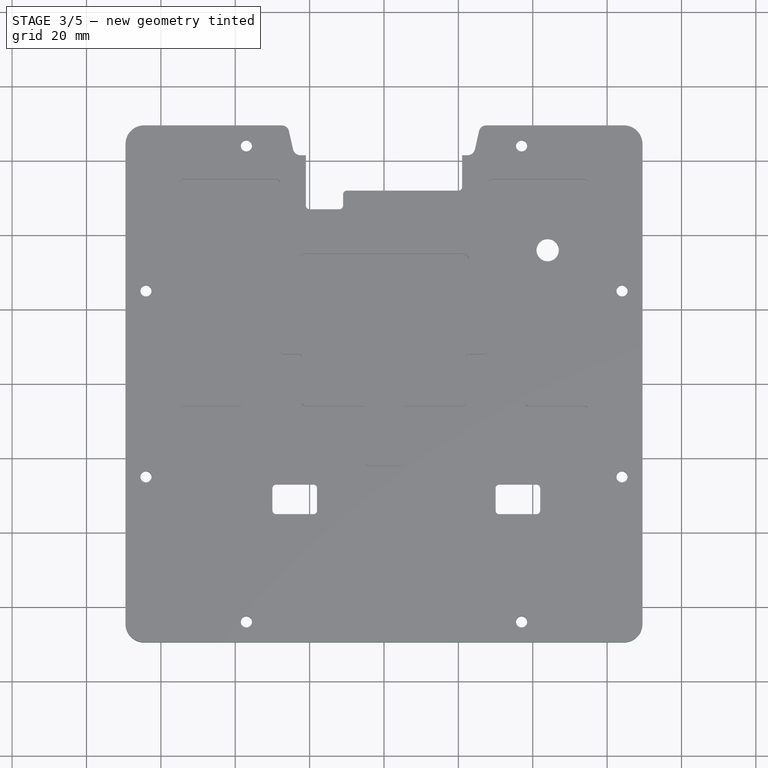
[diagram: stage 3 of 5 — top view after this stage's code; geometry added in this stage tinted green]
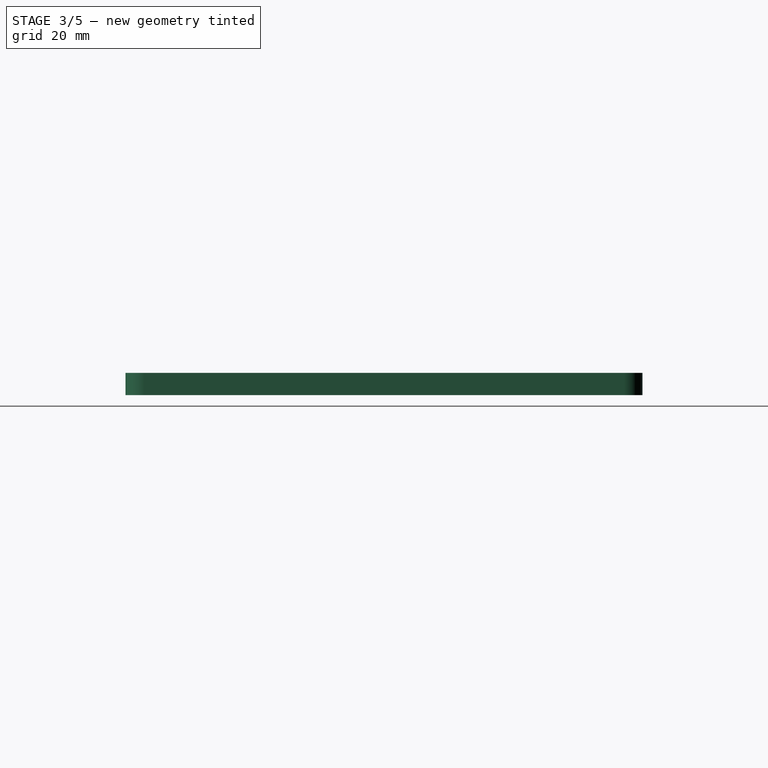
[diagram: stage 3 of 5 — right view after this stage's code; geometry added in this stage tinted green]
FEATURE [PartDesign::FeatureBase] Clone007
  BaseFeature = -> Fusion003
FEATURE [PartDesign::FeatureBase] Clone009
  BaseFeature = -> Body
  Placement = pos=(0,0,-3) rot=(0,0,1;0rad)
FEATURE [PartDesign::FeatureBase] Clone010
  BaseFeature = -> Clone007
FEATURE [PartDesign::Body] Body003  label="trellis_boards"
  Group = -> [Sketch005,Pad003,Sketch006,Pad004,Sketch007,Pad005]
  Origin = -> Origin007
  Tip = -> Pad005
FEATURE [App::Part] Part003  label="parts"
  Group = -> [Body001,Body003,Body002]
  License = CC BY 3.0
  LicenseURL = http://creativecommons.org/licenses/by/3.0/
  Origin = -> Origin006
FEATURE [PartDesign::FeatureBase] Clone011
  BaseFeature = -> Body003
FEATURE [Part::MultiFuse] Fusion005
  Shapes = -> [Clone011,Clone010]
FEATURE [Part::Cut] Cut005
  Base = -> Clone009
  Tool = -> Fusion005
FEATURE [App::Part] Part004  label="layer-3"
  Group = -> [Clone009,Clone010,Clone011,Fusion005,Cut005]
  License = CC BY 3.0
  LicenseURL = http://creativecommons.org/licenses/by/3.0/
  Origin = -> Origin008
FEATURE [PartDesign::FeatureBase] Clone012
  BaseFeature = -> Body
  Placement = pos=(0,0,-6) rot=(0,0,1;0rad)
FEATURE [Part::Cut] Cut006
  Base = -> Clone012
  Tool = -> Fusion006
FEATURE [App::Part] Part005  label="layer-4"
  Group = -> [Clone012,Clone014,Clone013,Fusion006,Cut006]
  License = CC BY 3.0
  LicenseURL = http://creativecommons.org/licenses/by/3.0/
  Origin = -> Origin009
FEATURE [Drawing::FeatureViewPart] Ortho  label="Ortho_0_0"
  Direction = (0,0,1)
  HiddenWidth = 0.15
  LineWidth = 0.35
  Rotation = 0
  ShowHiddenLines = false
  ShowSmoothLines = false
  Source = -> Cut004
  Tolerance = 0.05
  ViewResult = <blob: 28439 chars omitted>
  Visible = true
  X = 80
  Y = 80
FEATURE [Drawing::FeatureViewPart] Ortho001  label="Ortho_0_001"
  Direction = (0,0,1)
  HiddenWidth = 0.15
  LineWidth = 0.35
  Rotation = 0
  ShowHiddenLines = false
  ShowSmoothLines = false
  Source = -> Cut003
  Tolerance = 0.05
  ViewResult = <g id="Ortho_0_001"\n   transform="rotate(0,220,80) translate(220,80) scale(1,1)"\n  >\n<g   fill="none"\n   stroke="rgb(0, 0, 0)"\n   stroke-linecap="butt"\n   stroke-linejoin="miter"\n   stroke-width="0.350000"\n   transform="scale(1,-1)"\n  >\n<path d="M-64.5 69.5 A5 5 0 0 1 -69.5 64.5" /><path id= "2" d=" M -64.5 69.5 L -27.5 69.5 " />\n<path id= "3" d=" M -69.5 64.5 L -69.5 -64.5 " />\n<path d="M-25.5488 67.939 A2 2 0 0 1 -27.5 69.5" /><path id= "5" d=" M -25.5488 67.939 L -24.4512 63.061 " />\n<path d="M-24.4512 63.061 A2 2 0 0 1 -22.5 61.5" /><path id= "7" d=" M -22.5 61.5 L -21 61.5 " />\n<path id= "8" d=" M -21 60.5 L -21 61.5 " />\n<path id= "9" d=" M -60.5 60.5 L -21 60.5 " />\n<path id= "10" d=" M -60.5 -60.5 L -60.5 60.5 " />\n<path id= "11" d=" M -60.5 -60.5 L 60.5 -60.5 " />\n<path id= "12" d=" M 60.5 -60.5 L 60.5 60.5 " />\n<path id= "13" d=" M 21 60.5 L 60.5 60.5 " />\n<path id= "14" d=" M 21 60.5 L 21 61.5 " />\n<path id= "15" d=" M 21 61.5 L 22.5 61.5 " />\n<path d="M22.5 61.5 A2 2 0 0 1 24.4512 63.061" /><path id= "17" d=" M 24.4512 63.061 L 25.5488 67.939 " />\n<path d="M27.5 69.5 A2 2 0 0 1 25.5488 67.939" /><path id= "19" d=" M 27.5 69.5 L 64.5 69.5 " />\n<path d="M69.5 64.5 A5 5 0 0 1 64.5 69.5" /><path id= "21" d=" M 69.5 -64.5 L 69.5 64.5 " />\n<path d="M64.5 -69.5 A5 5 0 0 1 69.5 -64.5" /><path id= "23" d=" M -64.5 -69.5 L 64.5 -69.5 " />\n<path d="M-69.5 -64.5 A5 5 0 0 1 -64.5 -69.5" /><circle cx ="37" cy ="-64" r ="1.5" /><circle cx ="-37" cy ="-64" r ="1.5" /><circle cx ="-37" cy ="64" r ="1.5" /><circle cx ="37" cy ="64" r ="1.5" /><circle cx ="64" cy ="25" r ="1.5" /><circle cx ="64" cy ="-25" r ="1.5" /><circle cx ="-64" cy ="-25" r ="1.5" /><circle cx ="-64" cy ="25" r ="1.5" /></g>\n</g>
  Visible = true
  X = 220
  Y = 80
FEATURE [Drawing::FeatureViewPart] Ortho002  label="Ortho_0_002"
  Direction = (0,0,1)
  HiddenWidth = 0.15
  LineWidth = 0.35
  Rotation = 0
  ShowHiddenLines = false
  ShowSmoothLines = false
  Source = -> Cut005
  Tolerance = 0.05
  ViewResult = <blob: 4304 chars omitted>
  Visible = true
  X = 360
  Y = 80
FEATURE [Drawing::FeatureViewPart] Ortho003  label="Ortho_0_003"
  Direction = (0,0,1)
  HiddenWidth = 0.15
  LineWidth = 0.35
  Rotation = 0
  ShowHiddenLines = false
  ShowSmoothLines = false
  Source = -> Cut006
  Tolerance = 0.05
  ViewResult = <blob: 5219 chars omitted>
  Visible = true
  X = 500
  Y = 80
FEATURE [Drawing::FeaturePage] Page001
  Group = -> [Ortho,Ortho001,Ortho002,Ortho003]
  Template = <path>
note: 1 file-system path scrubbed to <path> (originals preserved in the JSON sidecar)
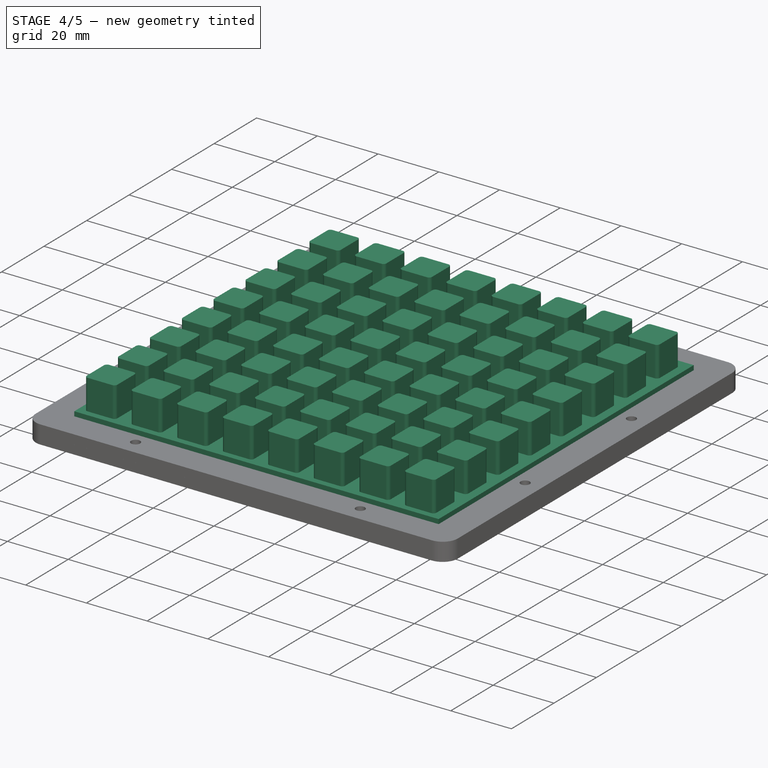
[diagram: stage 4 of 5 — iso view after this stage's code; geometry added in this stage tinted green]
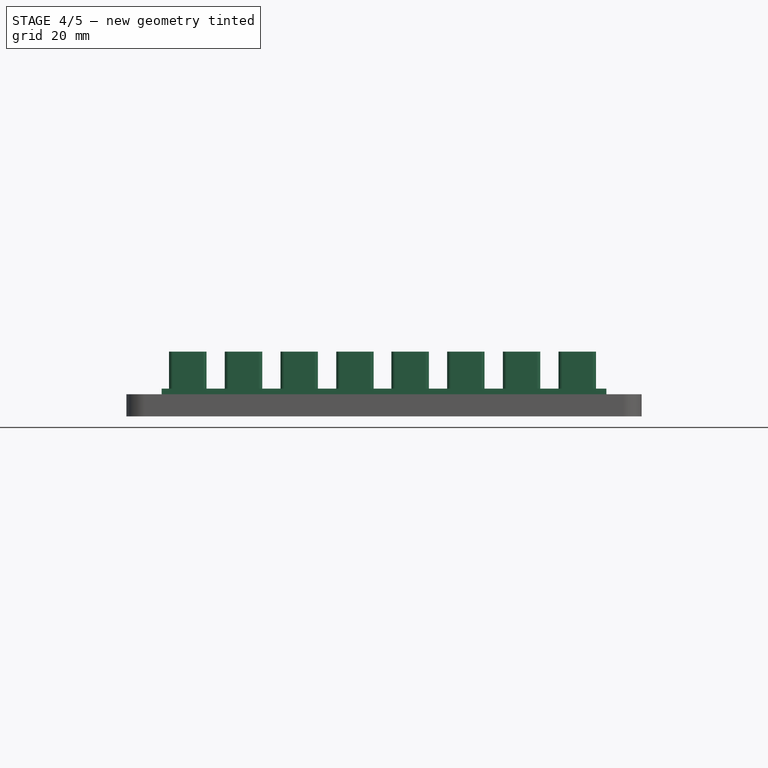
[diagram: stage 4 of 5 — front view after this stage's code; geometry added in this stage tinted green]
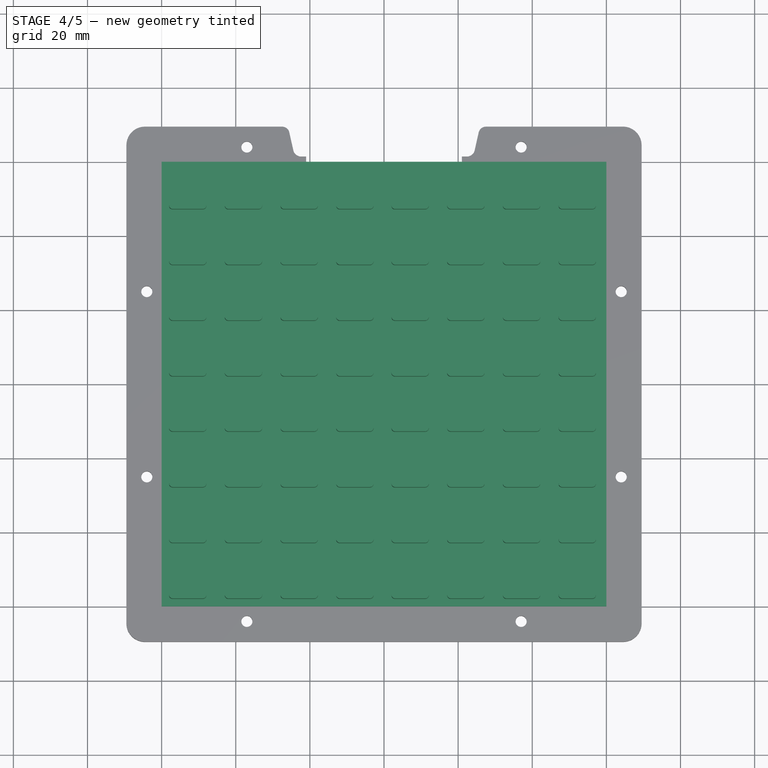
[diagram: stage 4 of 5 — top view after this stage's code; geometry added in this stage tinted green]
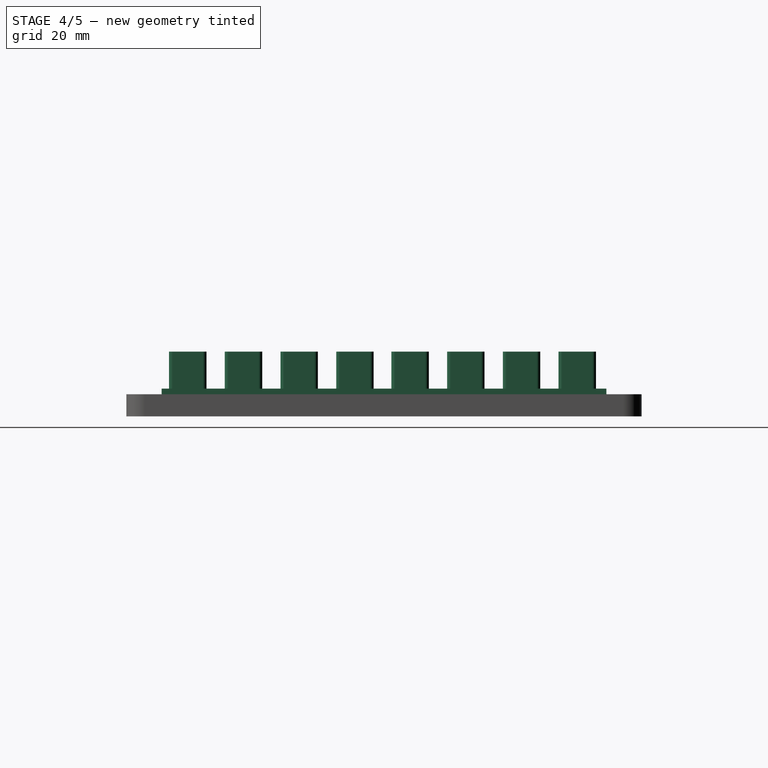
[diagram: stage 4 of 5 — right view after this stage's code; geometry added in this stage tinted green]
FEATURE [PartDesign::Body] Body  label="base"
  Group = -> [Sketch,Pad]
  Origin = -> Origin001
  Placement = pos=(0,0,3) rot=(0,0,1;0rad)
  Tip = -> Pad
FEATURE [Sketcher::SketchObject] Sketch002
  FullyConstrained = false
  MapMode = 5
  Support = -> [XY_Plane002]
  sketch-geometry (4):
    g0: LineSegment StartX=0 StartY=0 StartZ=0 EndX=60 EndY=0 EndZ=0
    g1: LineSegment StartX=60 StartY=0 StartZ=0 EndX=60 EndY=60 EndZ=0
    g2: LineSegment StartX=60 StartY=60 StartZ=0 EndX=0 EndY=60 EndZ=0
    g3: LineSegment StartX=0 StartY=60 StartZ=0 EndX=0 EndY=0 EndZ=0
  constraints (11):
    c: Coincident(g0,g1)
    c: Coincident(g1,g2)
    c: Coincident(g2,g3)
    c: Coincident(g3,g0)
    c: Horizontal(g0)
    c: Horizontal(g2)
    c: Vertical(g1)
    c: Vertical(g3)
    c: Coincident(g0,g-1)
    c: Equal(g2,g1)
    c: Distance(g2) = 60
FEATURE [PartDesign::Pad] Pad001
  AllowMultiFace = false
  Direction = (1,1,1)
  Length = 1.5
  Length2 = 100
  Profile = -> Sketch002
  Type = 0
FEATURE [Sketcher::SketchObject] Sketch003
  FullyConstrained = false
  MapMode = 5
  Placement = pos=(0,0,1.5) rot=(0,0,1;0rad)
  Support = -> [Pad001]
  sketch-geometry (39):
    g0: LineSegment StartX=2 StartY=57.2 StartZ=0 EndX=57.2 EndY=57.2 EndZ=0
    g1: LineSegment StartX=57.2 StartY=57.2 StartZ=0 EndX=57.2 EndY=2 EndZ=0
    g2: LineSegment StartX=57.2 StartY=2 StartZ=0 EndX=2 EndY=2 EndZ=0
    g3: LineSegment StartX=2 StartY=2 StartZ=0 EndX=2 EndY=57.2 EndZ=0
    g4: LineSegment StartX=3 StartY=2 StartZ=0 EndX=11.1 EndY=2 EndZ=0
    g5: LineSegment StartX=12.1 StartY=3 StartZ=0 EndX=12.1 EndY=11.1 EndZ=0
    g6: LineSegment StartX=11.1 StartY=12.1 StartZ=0 EndX=3 EndY=12.1 EndZ=0
    g7: LineSegment StartX=2 StartY=11.1 StartZ=0 EndX=2 EndY=3 EndZ=0
    g8: LineSegment StartX=3 StartY=17.0333 StartZ=0 EndX=11.1 EndY=17.0333 EndZ=0
    g9: LineSegment StartX=12.1 StartY=18.0333 StartZ=0 EndX=12.1 EndY=26.1333 EndZ=0
    g10: LineSegment StartX=11.1 StartY=27.1333 StartZ=0 EndX=3 EndY=27.1333 EndZ=0
    g11: LineSegment StartX=2 StartY=26.1333 StartZ=0 EndX=2 EndY=18.0333 EndZ=0
    g12: LineSegment StartX=3 StartY=32.0667 StartZ=0 EndX=11.1 EndY=32.0667 EndZ=0
    g13: LineSegment StartX=12.1 StartY=33.0667 StartZ=0 EndX=12.1 EndY=41.1667 EndZ=0
    g14: LineSegment StartX=11.1 StartY=42.1667 StartZ=0 EndX=3 EndY=42.1667 EndZ=0
    g15: LineSegment StartX=2 StartY=41.1667 StartZ=0 EndX=2 EndY=33.0667 EndZ=0
    g16: LineSegment StartX=3 StartY=57.2 StartZ=0 EndX=11.1 EndY=57.2 EndZ=0
    g17: LineSegment StartX=12.1 StartY=56.2 StartZ=0 EndX=12.1 EndY=48.1 EndZ=0
    g18: LineSegment StartX=11.1 StartY=47.1 StartZ=0 EndX=3 EndY=47.1 EndZ=0
    g19: LineSegment StartX=2 StartY=48.1 StartZ=0 EndX=2 EndY=56.2 EndZ=0
    g20: LineSegment StartX=11.1 StartY=47.1 StartZ=0 EndX=11.1 EndY=42.1667 EndZ=0
    g21: LineSegment StartX=11.1 StartY=32.0667 StartZ=0 EndX=11.1 EndY=27.1333 EndZ=0
    g22: LineSegment StartX=11.1 StartY=17.0333 StartZ=0 EndX=11.1 EndY=12.1 EndZ=0
    g23: ArcOfCircle CenterX=3 CenterY=56.2 CenterZ=0 NormalX=0 NormalY=0 NormalZ=1 AngleXU=0 Radius=1 StartAngle=1.5708 EndAngle=3.14159
    g24: ArcOfCircle CenterX=11.1 CenterY=56.2 CenterZ=0 NormalX=0 NormalY=0 NormalZ=1 AngleXU=0 Radius=1 StartAngle=0 EndAngle=1.5708
    g25: ArcOfCircle CenterX=11.1 CenterY=48.1 CenterZ=0 NormalX=0 NormalY=0 NormalZ=1 AngleXU=0 Radius=1 StartAngle=4.71239 EndAngle=6.28319
    g26: ArcOfCircle CenterX=3 CenterY=48.1 CenterZ=0 NormalX=0 NormalY=0 NormalZ=1 AngleXU=0 Radius=1 StartAngle=3.14159 EndAngle=4.71239
    g27: ArcOfCircle CenterX=3 CenterY=41.1667 CenterZ=0 NormalX=0 NormalY=0 NormalZ=1 AngleXU=0 Radius=1 StartAngle=1.5708 EndAngle=3.14159
    g28: ArcOfCircle CenterX=11.1 CenterY=41.1667 CenterZ=0 NormalX=0 NormalY=0 NormalZ=1 AngleXU=0 Radius=1 StartAngle=0 EndAngle=1.5708
    g29: ArcOfCircle CenterX=11.1 CenterY=33.0667 CenterZ=0 NormalX=0 NormalY=0 NormalZ=1 AngleXU=0 Radius=1 StartAngle=4.71239 EndAngle=6.28319
    g30: ArcOfCircle CenterX=3 CenterY=33.0667 CenterZ=0 NormalX=0 NormalY=0 NormalZ=1 AngleXU=0 Radius=1 StartAngle=3.14159 EndAngle=4.71239
    g31: ArcOfCircle CenterX=3 CenterY=26.1333 CenterZ=0 NormalX=0 NormalY=0 NormalZ=1 AngleXU=0 Radius=1 StartAngle=1.5708 EndAngle=3.14159
    g32: ArcOfCircle CenterX=3 CenterY=18.0333 CenterZ=0 NormalX=0 NormalY=0 NormalZ=1 AngleXU=0 Radius=1 StartAngle=3.14159 EndAngle=4.71239
    g33: ArcOfCircle CenterX=11.1 CenterY=18.0333 CenterZ=0 NormalX=0 NormalY=0 NormalZ=1 AngleXU=0 Radius=1 StartAngle=4.71239 EndAngle=6.28319
    g34: ArcOfCircle CenterX=11.1 CenterY=26.1333 CenterZ=0 NormalX=0 NormalY=0 NormalZ=1 AngleXU=0 Radius=1 StartAngle=0 EndAngle=1.5708
    g35: ArcOfCircle CenterX=11.1 CenterY=11.1 CenterZ=0 NormalX=0 NormalY=0 NormalZ=1 AngleXU=0 Radius=1 StartAngle=0 EndAngle=1.5708
    g36: ArcOfCircle CenterX=11.1 CenterY=3 CenterZ=0 NormalX=0 NormalY=0 NormalZ=1 AngleXU=0 Radius=1 StartAngle=4.71239 EndAngle=6.28319
    g37: ArcOfCircle CenterX=3 CenterY=3 CenterZ=0 NormalX=0 NormalY=0 NormalZ=1 AngleXU=0 Radius=1 StartAngle=3.14159 EndAngle=4.71239
    g38: ArcOfCircle CenterX=3 CenterY=11.1 CenterZ=0 NormalX=0 NormalY=0 NormalZ=1 AngleXU=0 Radius=1 StartAngle=1.5708 EndAngle=3.14159
  constraints (98):
    c: Coincident(g0,g1)
    c: Coincident(g1,g2)
    c: Coincident(g2,g3)
    c: Coincident(g3,g0)
    c: Horizontal(g0)
    c: Horizontal(g2)
    c: Vertical(g1)
    c: Vertical(g3)
    c: Equal(g0,g1)
    c: Distance(g0) = 55.2
    c: DistanceY(g2) = 2
    c: DistanceX(g2) = 2
    c: Horizontal(g4)
    c: Horizontal(g6)
    c: Vertical(g5)
    c: Vertical(g7)
    c: Horizontal(g8)
    c: Horizontal(g10)
    c: Vertical(g9)
    c: Vertical(g11)
    c: Horizontal(g12)
    c: Horizontal(g14)
    c: Vertical(g13)
    c: Vertical(g15)
    c: Horizontal(g16)
    c: Horizontal(g18)
    c: Vertical(g17)
    c: Vertical(g19)
    c: Equal(g17,g18)
    c: Equal(g18,g14)
    c: Equal(g14,g13)
    c: Equal(g13,g10)
    c: Equal(g10,g9)
    c: Equal(g9,g6)
    c: Equal(g6,g5)
    c: Vertical(g20)
    c: Vertical(g21)
    c: Equal(g22,g21)
    c: Equal(g21,g20)
    c: Tangent(g16,g23) = 1.5708
    c: Tangent(g19,g23) = 1.5708
    c: Tangent(g16,g24) = 1.5708
    c: Tangent(g17,g24) = 1.5708
    c: Tangent(g17,g25) = 1.5708
    c: Tangent(g18,g25) = 1.5708
    c: Tangent(g18,g26) = 1.5708
    c: Tangent(g19,g26) = 1.5708
    c: Tangent(g14,g27) = -1.5708
    c: Tangent(g15,g27) = -1.5708
    c: Tangent(g14,g28) = -1.5708
    c: Tangent(g13,g28) = -1.5708
    c: Tangent(g12,g29) = -1.5708
    c: Tangent(g13,g29) = -1.5708
    c: Tangent(g12,g30) = -1.5708
    c: Tangent(g15,g30) = -1.5708
    c: Tangent(g10,g31) = -1.5708
    c: Tangent(g11,g31) = -1.5708
    c: Tangent(g11,g32) = -1.5708
    c: Tangent(g8,g32) = -1.5708
    c: Tangent(g8,g33) = -1.5708
    c: Tangent(g9,g33) = -1.5708
    c: Tangent(g9,g34) = -1.5708
    c: Tangent(g10,g34) = -1.5708
    c: Tangent(g6,g35) = -1.5708
    c: Tangent(g5,g35) = -1.5708
    c: Tangent(g5,g36) = -1.5708
    c: Tangent(g4,g36) = -1.5708
    c: Tangent(g4,g37) = -1.5708
    c: Tangent(g7,g37) = -1.5708
    c: Tangent(g7,g38) = -1.5708
    c: Tangent(g6,g38) = -1.5708
    c: Radius(g35) = 1
    c: Equal(g35,g36)
    c: Equal(g35,g37)
    c: Equal(g35,g38)
    c: Equal(g35,g32)
    c: Equal(g35,g33)
    c: Equal(g35,g34)
    c: Equal(g35,g31)
    c: Equal(g35,g30)
    c: Equal(g35,g29)
    c: Equal(g35,g28)
    c: Equal(g35,g27)
    c: Equal(g35,g26)
    c: Equal(g35,g25)
    c: Equal(g35,g24)
    c: Equal(g35,g23)
    c: PointOnObject(g16,g0)
    c: PointOnObject(g19,g3)
    c: Coincident(g20,g14)
    c: Coincident(g18,g20)
    c: Coincident(g12,g21)
    c: Coincident(g21,g10)
    c: Vertical(g22)
    c: Coincident(g22,g8)
    c: Coincident(g22,g6)
    c: PointOnObject(g4,g2)
    c: Distance(g6,g4) = 10.1
FEATURE [PartDesign::Pad] Pad002
  AllowMultiFace = false
  BaseFeature = -> Pad001
  Direction = (1,1,1)
  Length = 10
  Length2 = 100
  Profile = -> Sketch003
  Type = 0
FEATURE [PartDesign::LinearPattern] LinearPattern
  BaseFeature = -> Pad002
  Direction = -> Sketch003 [H_Axis]
  Length = 45.1
  Occurrences = 4
  Originals = -> [Pad002]
FEATURE [PartDesign::Body] Body001  label="pad_4x4"
  Group = -> [Sketch002,Pad001,Sketch003,Pad002,LinearPattern]
  Origin = -> Origin002
  Tip = -> LinearPattern
FEATURE [PartDesign::FeatureBase] Clone
  BaseFeature = -> Body001
  Placement = pos=(0,-60,0) rot=(0,0,1;0rad)
FEATURE [PartDesign::FeatureBase] Clone001
  BaseFeature = -> Body001
  Placement = pos=(-60,0,0) rot=(0,0,1;0rad)
FEATURE [PartDesign::FeatureBase] Clone002
  BaseFeature = -> Body001
  Placement = pos=(-60,-60,0) rot=(0,0,1;0rad)
FEATURE [App::Part] Part002  label="layer-2"
  Group = -> [Box001,Clone005,Clone007,Fusion004,Cut003]
  License = CC BY 3.0
  LicenseURL = http://creativecommons.org/licenses/by/3.0/
  Origin = -> Origin005
FEATURE [PartDesign::FeatureBase] Clone008
  BaseFeature = -> Body001
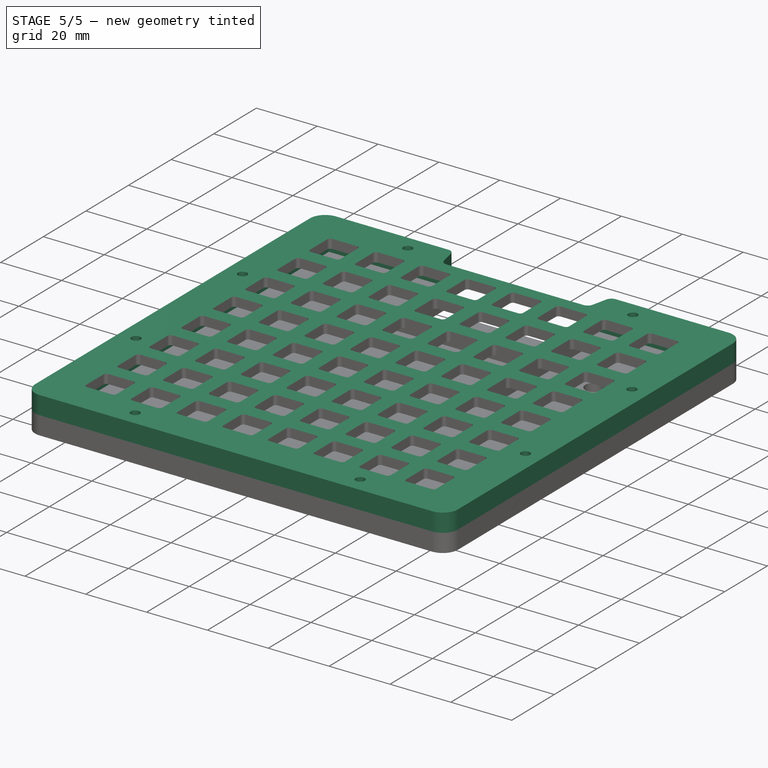
[diagram: stage 5 of 5 — iso view after this stage's code; geometry added in this stage tinted green]
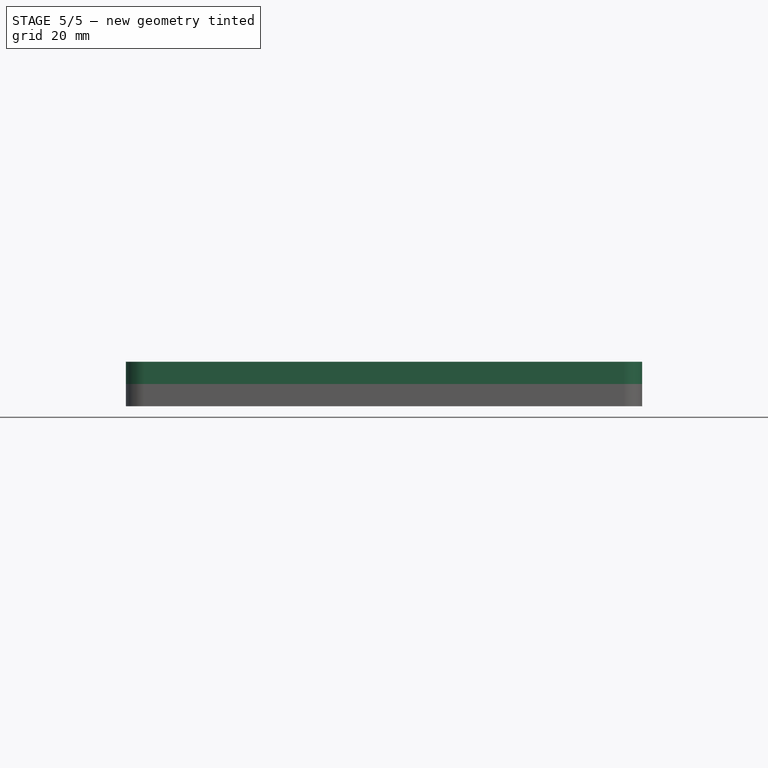
[diagram: stage 5 of 5 — front view after this stage's code; geometry added in this stage tinted green]
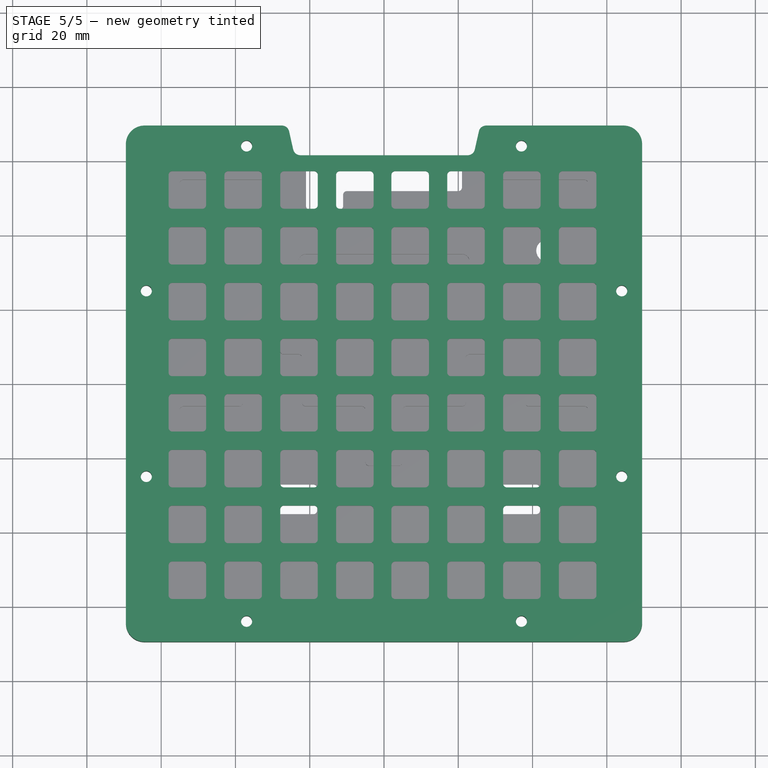
[diagram: stage 5 of 5 — top view after this stage's code; geometry added in this stage tinted green]
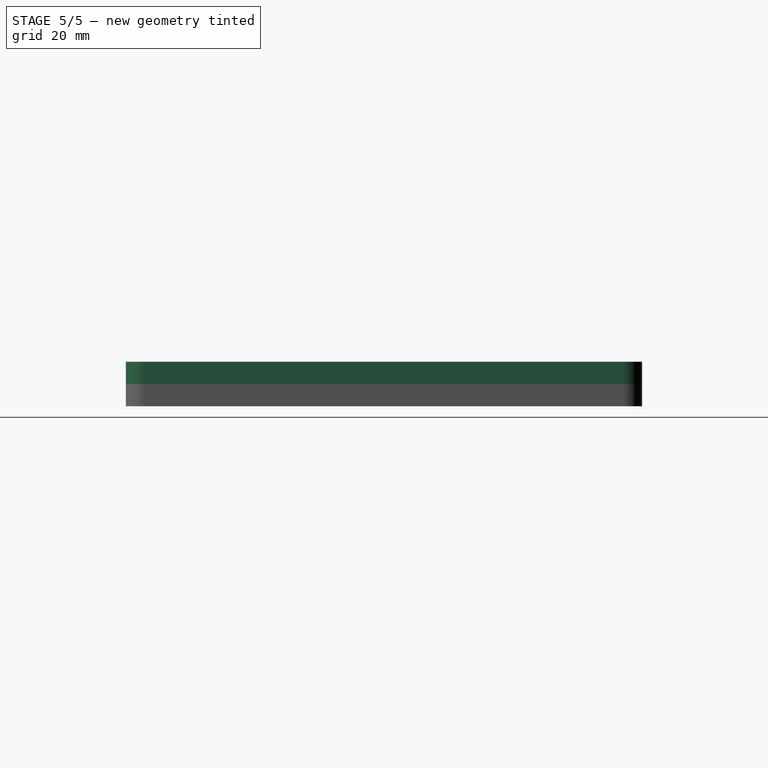
[diagram: stage 5 of 5 — right view after this stage's code; geometry added in this stage tinted green]
FEATURE [Part::Box] Box  label="connectors"
  AttacherType = Attacher::AttachEngine3D
  Height = 3
  Length = 42
  Placement = pos=(-21,58,0) rot=(0,0,1;0rad)
  Width = 10
FEATURE [Part::Box] Box001  label="Cube"
  AttacherType = Attacher::AttachEngine3D
  Height = 3
  Length = 121
  Placement = pos=(-60.5,-60.5,0) rot=(0,0,1;0rad)
  Width = 121
FEATURE [PartDesign::FeatureBase] Clone005
  BaseFeature = -> Body
FEATURE [Part::MultiFuse] Fusion004
  Shapes = -> [Box001,Clone007,Box]
FEATURE [Part::Cut] Cut003
  Base = -> Clone005
  Tool = -> Fusion004
FEATURE [Part::MultiFuse] Fusion  label="4x pad_4x4"
  Placement = pos=(0,0,1.5) rot=(0,0,1;0rad)
  Shapes = -> [Clone,Clone001,Clone002,Clone008]
FEATURE [Part::Cut] Cut
  Base = -> Body
  Tool = -> Fusion
FEATURE [Part::Cut] Cut004
  Base = -> Cut
  Tool = -> Fusion003
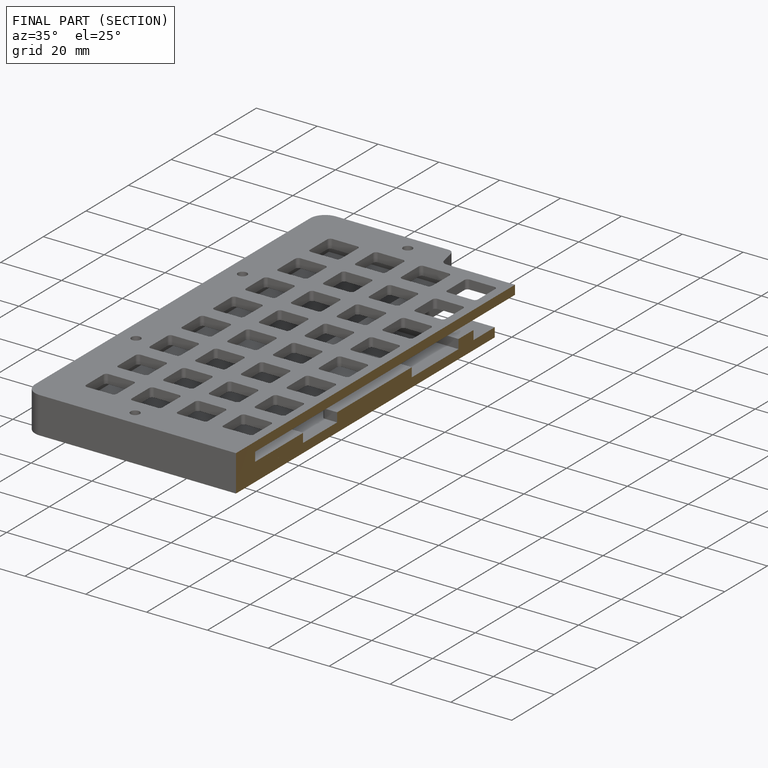
[diagram: finished part — half-section view (interior)]
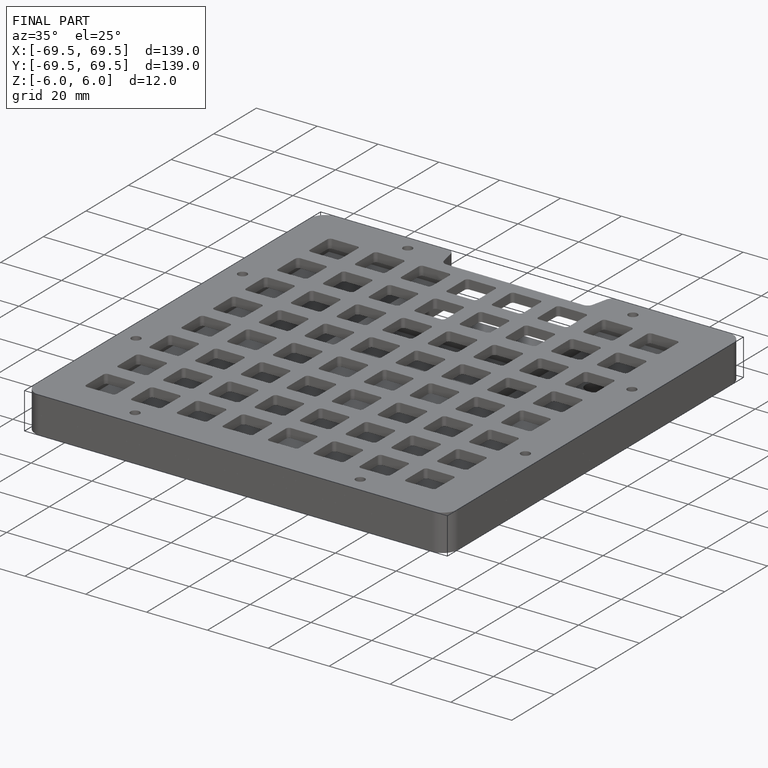
[diagram: finished part — iso view with bounding-box wireframe]
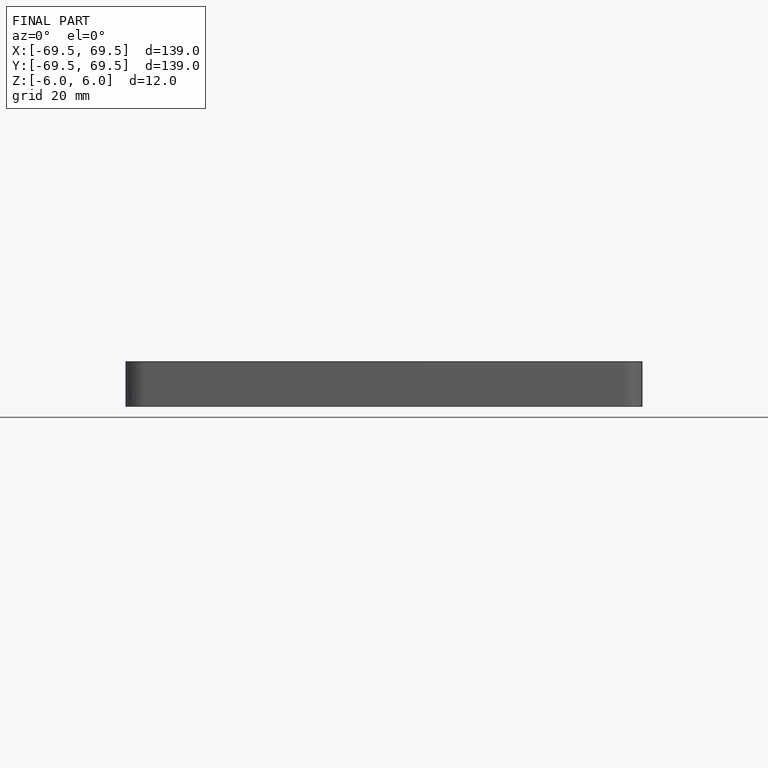
[diagram: finished part — front view with bounding-box wireframe]
